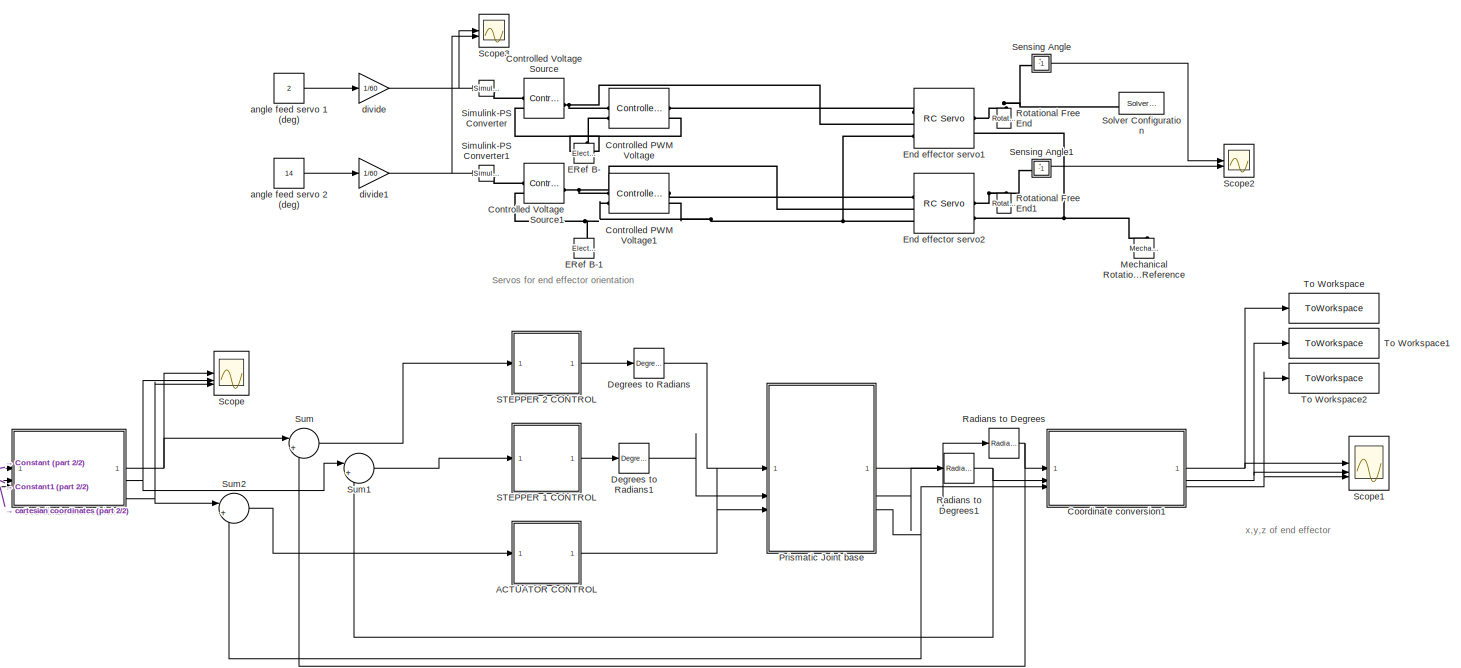
[diagram: root canvas - part 1/2, most of the canvas]
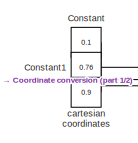
[diagram: root canvas - part 2/2, bottom left region]
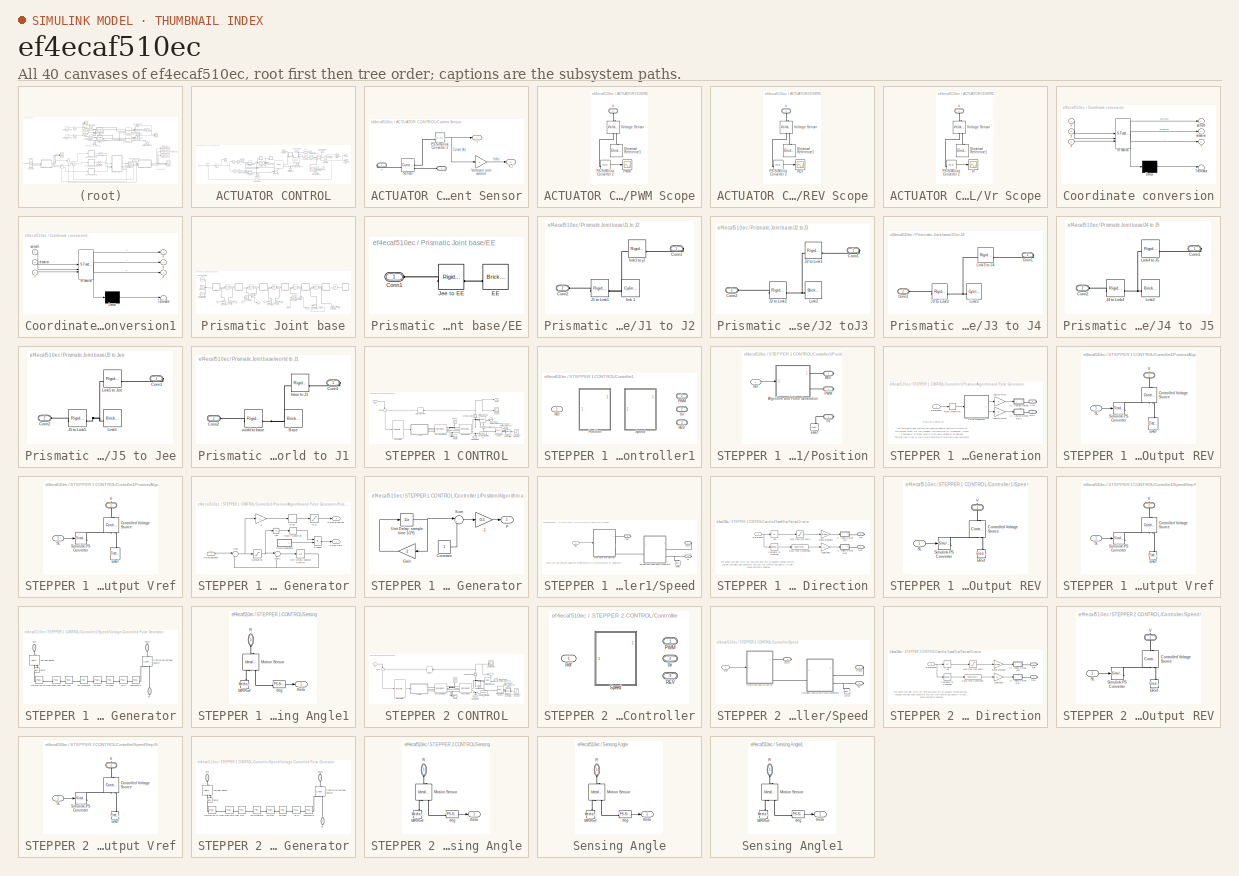
[diagram: thumbnail index - all 40 canvases of the model, root first then tree order]
MODEL slx_ef4ecaf510ec
KIND model
CONFIG AbsTol = auto
CONFIG EnableMultiTasking = off
CONFIG FixedStep = auto
CONFIG MaxStep = auto
CONFIG MinStep = auto
CONFIG RelTol = 1e-3
CONFIG SampleTimeConstraint = Unconstrained
CONFIG SolverName = VariableStepAuto
CONFIG StartTime = 0.0
CONFIG StopTime = 10
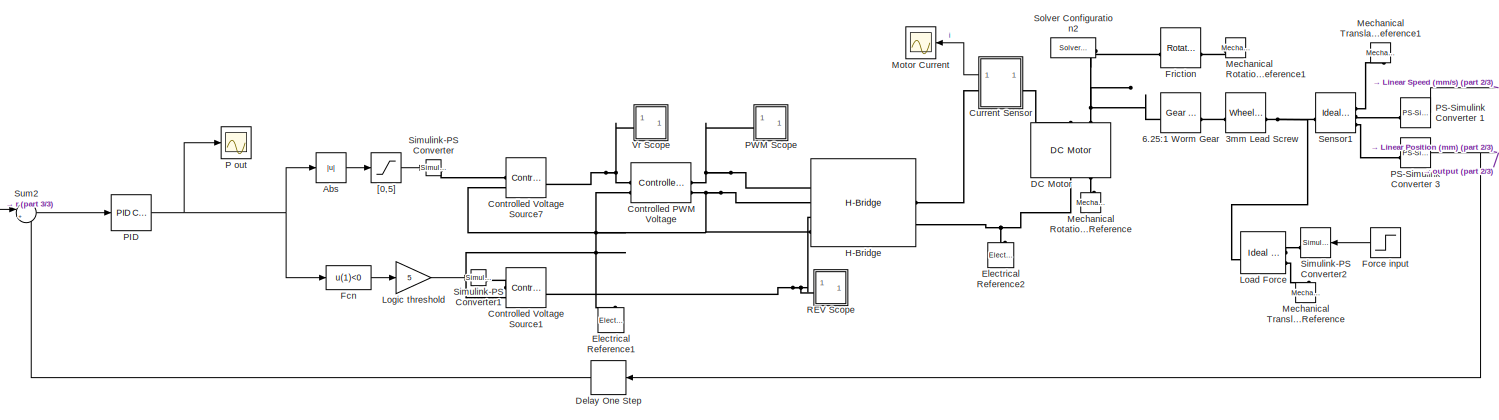
[diagram: ACTUATOR CONTROL - part 1/3, most of the canvas]
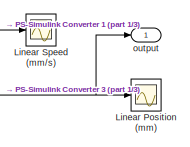
[diagram: ACTUATOR CONTROL - part 2/3, middle right region]
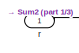
[diagram: ACTUATOR CONTROL - part 3/3, middle left region]
BLOCK [SubSystem] ACTUATOR CONTROL
BLOCK [Reference] ACTUATOR CONTROL/ PID  REF=slpidlib/PID Controller
  SourceBlock = slpidlib/PID Controller
  SourceType = PID 1dof
BLOCK [Reference] ACTUATOR CONTROL/3mm Lead Screw  REF=fl_lib/Mechanical/Mechanisms/Wheel and Axle
  SourceBlock = fl_lib/Mechanical/Mechanisms/Wheel and Axle
  SourceType = Wheel and Axle
BLOCK [Reference] ACTUATOR CONTROL/6.25:1 Worm Gear  REF=fl_lib/Mechanical/Mechanisms/Gear Box
  SourceBlock = fl_lib/Mechanical/Mechanisms/Gear Box
  SourceType = Gear Box
BLOCK [Abs] ACTUATOR CONTROL/Abs
  SaturateOnIntegerOverflow = off
BLOCK [Reference] ACTUATOR CONTROL/Controlled PWM Voltage  REF=ee_lib/Integrated Circuits/Controlled PWM
Voltage
  SourceBlock = ee_lib/Integrated Circuits/Controlled PWM\nVoltage
  SourceType = Controlled PWM\nVoltage
BLOCK [Reference] ACTUATOR CONTROL/Controlled Voltage Source1  REF=fl_lib/Electrical/Electrical Sources/Controlled Voltage
Source
  SourceBlock = fl_lib/Electrical/Electrical Sources/Controlled Voltage\nSource
  SourceType = Controlled Voltage\nSource
BLOCK [Reference] ACTUATOR CONTROL/Controlled Voltage Source7  REF=fl_lib/Electrical/Electrical Sources/Controlled Voltage
Source
  SourceBlock = fl_lib/Electrical/Electrical Sources/Controlled Voltage\nSource
  SourceType = Controlled Voltage\nSource
BLOCK [SubSystem] ACTUATOR CONTROL/Current Sensor
BLOCK [PMIOPort] ACTUATOR CONTROL/Current Sensor/+
  Side = Right
BLOCK [PMIOPort] ACTUATOR CONTROL/Current Sensor/-
  Port = 2
  Side = Left
BLOCK [Reference] ACTUATOR CONTROL/Current Sensor/PS-Simulink Converter 2  REF=nesl_utility/PS-Simulink
Converter
  SourceBlock = nesl_utility/PS-Simulink\nConverter
  SourceType = PS-Simulink\nConverter
BLOCK [Reference] ACTUATOR CONTROL/Current Sensor/Sensor  REF=fl_lib/Electrical/Electrical Sensors/Current Sensor
  SourceBlock = fl_lib/Electrical/Electrical Sensors/Current Sensor
  SourceType = Current Sensor
BLOCK [Outport] ACTUATOR CONTROL/Current Sensor/V_i
  Port = 2
  VectorParamsAs1DForOutWhenUnconnected = off
BLOCK [Gain] ACTUATOR CONTROL/Current Sensor/Volts per unit current
BLOCK [Outport] ACTUATOR CONTROL/Current Sensor/i
  VectorParamsAs1DForOutWhenUnconnected = off
BLOCK [Reference] ACTUATOR CONTROL/DC Motor  REF=ee_lib/Electromechanical/Brushed Motors/DC Motor
  NameLocation = left
  SourceBlock = ee_lib/Electromechanical/Brushed Motors/DC Motor
  SourceType = DC Motor
BLOCK [Delay] ACTUATOR CONTROL/Delay One Step
  DelayLength = 1
  InputPortMap = u0
  NameLocation = top
BLOCK [Reference] ACTUATOR CONTROL/Electrical Reference1  REF=fl_lib/Electrical/Electrical Elements/Electrical Reference
  NameLocation = right
  SourceBlock = fl_lib/Electrical/Electrical Elements/Electrical Reference
  SourceType = Electrical Reference
BLOCK [Reference] ACTUATOR CONTROL/Electrical Reference2  REF=fl_lib/Electrical/Electrical Elements/Electrical Reference
  NameLocation = right
  SourceBlock = fl_lib/Electrical/Electrical Elements/Electrical Reference
  SourceType = Electrical Reference
BLOCK [Fcn] ACTUATOR CONTROL/Fcn
  Expr = u(1)<0
BLOCK [Step] ACTUATOR CONTROL/Force input
  After = 26
  SampleTime = 0
  Time = 0
BLOCK [Reference] ACTUATOR CONTROL/Friction  REF=fl_lib/Mechanical/Rotational Elements/Rotational Friction
  SourceBlock = fl_lib/Mechanical/Rotational Elements/Rotational Friction
  SourceType = Rotational Friction
BLOCK [Reference] ACTUATOR CONTROL/H-Bridge  REF=ee_lib/Semiconductors &
Converters/Converters/H-Bridge
  SourceBlock = ee_lib/Semiconductors &\nConverters/Converters/H-Bridge
  SourceType = H-Bridge
BLOCK [Scope] ACTUATOR CONTROL/Linear Position (mm)
  Floating = off
  NumInputPorts = 1
  ScopeSpecificationString = Simulink.scopes.TimeScopeBlockCfg('CurrentConfiguration', extmgr.ConfigurationSet(extmgr.Configuration('Core','General UI',true,'FigureColor',[0.156862745098039 0.156862745098039 0.156862745098039],'MessageLogAutoOpenMode','for warn/fail messages','ShowCloseAll',true,'ShowBringAllForward',true),extmgr.Configuration('Core','Source UI',true,'PlaybackToolbar',true),extmgr.Configuration('Sources','Wir...<+2071ch>
BLOCK [Scope] ACTUATOR CONTROL/Linear Speed (mm//s)
  Floating = off
  NumInputPorts = 1
  ScopeSpecificationString = Simulink.scopes.TimeScopeBlockCfg('CurrentConfiguration', extmgr.ConfigurationSet(extmgr.Configuration('Core','General UI',true,'MessageLogAutoOpenMode','for warn/fail messages','ShowCloseAll',true,'ShowBringAllForward',true,'FigureColor',[0.156862745098039 0.156862745098039 0.156862745098039]),extmgr.Configuration('Core','Source UI',true,'PlaybackToolbar',true),extmgr.Configuration('Sources','Wir...<+1956ch>
BLOCK [Reference] ACTUATOR CONTROL/Load Force  REF=fl_lib/Mechanical/Mechanical Sources/Ideal Force Source
  SourceBlock = fl_lib/Mechanical/Mechanical Sources/Ideal Force Source
  SourceType = Ideal Force Source
BLOCK [Gain] ACTUATOR CONTROL/Logic threshold
  Gain = 5
BLOCK [Reference] ACTUATOR CONTROL/Mechanical Rotational Reference  REF=fl_lib/Mechanical/Rotational Elements/Mechanical
Rotational Reference
  NameLocation = left
  SourceBlock = fl_lib/Mechanical/Rotational Elements/Mechanical\nRotational Reference
  SourceType = Mechanical\nRotational Reference
BLOCK [Reference] ACTUATOR CONTROL/Mechanical Rotational Reference1  REF=fl_lib/Mechanical/Rotational Elements/Mechanical
Rotational Reference
  SourceBlock = fl_lib/Mechanical/Rotational Elements/Mechanical\nRotational Reference
  SourceType = Mechanical\nRotational Reference
BLOCK [Reference] ACTUATOR CONTROL/Mechanical Translational Reference  REF=fl_lib/Mechanical/Translational
Elements/Mechanical
Translational
Reference
  NameLocation = right
  SourceBlock = fl_lib/Mechanical/Translational\nElements/Mechanical\nTranslational\nReference
  SourceType = Mechanical\nTranslational\nReference
BLOCK [Reference] ACTUATOR CONTROL/Mechanical Translational Reference1  REF=fl_lib/Mechanical/Translational
Elements/Mechanical
Translational
Reference
  NameLocation = left
  SourceBlock = fl_lib/Mechanical/Translational\nElements/Mechanical\nTranslational\nReference
  SourceType = Mechanical\nTranslational\nReference
BLOCK [Scope] ACTUATOR CONTROL/Motor Current
  Floating = off
  NumInputPorts = 1
  ScopeSpecificationString = Simulink.scopes.TimeScopeBlockCfg('CurrentConfiguration', extmgr.ConfigurationSet(extmgr.Configuration('Core','General UI',true,'FigureColor',[0.156862745098039 0.156862745098039 0.156862745098039],'MessageLogAutoOpenMode','for warn/fail messages','ShowCloseAll',true,'ShowBringAllForward',true),extmgr.Configuration('Core','Source UI',true,'PlaybackToolbar',true),extmgr.Configuration('Sources','Wir...<+2069ch>
BLOCK [Scope] ACTUATOR CONTROL/P out
  Floating = off
  NumInputPorts = 1
  ScopeSpecificationString = Simulink.scopes.TimeScopeBlockCfg('CurrentConfiguration', extmgr.ConfigurationSet(extmgr.Configuration('Core','General UI',true,'FigureColor',[0.156862745098039 0.156862745098039 0.156862745098039],'MessageLogAutoOpenMode','for warn/fail messages','ShowCloseAll',true,'ShowBringAllForward',true),extmgr.Configuration('Core','Source UI',true,'PlaybackToolbar',true),extmgr.Configuration('Sources','Wir...<+2072ch>
BLOCK [Reference] ACTUATOR CONTROL/PS-Simulink Converter 1  REF=nesl_utility/PS-Simulink
Converter
  SourceBlock = nesl_utility/PS-Simulink\nConverter
  SourceType = PS-Simulink\nConverter
BLOCK [Reference] ACTUATOR CONTROL/PS-Simulink Converter 3  REF=nesl_utility/PS-Simulink
Converter
  SourceBlock = nesl_utility/PS-Simulink\nConverter
  SourceType = PS-Simulink\nConverter
BLOCK [SubSystem] ACTUATOR CONTROL/PWM Scope
BLOCK [Reference] ACTUATOR CONTROL/PWM Scope/Electrical Reference1  REF=fl_lib/Electrical/Electrical Elements/Electrical Reference
  NameLocation = right
  SourceBlock = fl_lib/Electrical/Electrical Elements/Electrical Reference
  SourceType = Electrical Reference
BLOCK [Reference] ACTUATOR CONTROL/PWM Scope/PS-Simulink Converter 2  REF=nesl_utility/PS-Simulink
Converter
  SourceBlock = nesl_utility/PS-Simulink\nConverter
  SourceType = PS-Simulink\nConverter
BLOCK [Scope] ACTUATOR CONTROL/PWM Scope/PWM
  Floating = off
  NumInputPorts = 1
  ScopeSpecificationString = Simulink.scopes.TimeScopeBlockCfg('CurrentConfiguration', extmgr.ConfigurationSet(extmgr.Configuration('Core','General UI',true,'ShowNewAction',false,'ShowLoadConfigSet',false,'ShowSaveConfigSet',false,'DisplayFullSourceName',false,'MessageLogAutoOpenMode','for warn/fail messages','MessageLogDialogPosition',[20 520 450 500],'ShowMainToolbar',true,'ShowPlaybackToolbar',false,'ShowStatusbar',true,'S...<+3033ch>
BLOCK [Reference] ACTUATOR CONTROL/PWM Scope/Voltage Sensor  REF=fl_lib/Electrical/Electrical Sensors/Voltage Sensor
  NameLocation = right
  SourceBlock = fl_lib/Electrical/Electrical Sensors/Voltage Sensor
  SourceType = Voltage Sensor
BLOCK [PMIOPort] ACTUATOR CONTROL/PWM Scope/u
  NameLocation = right
  Side = Left
BLOCK [SubSystem] ACTUATOR CONTROL/REV Scope
BLOCK [Reference] ACTUATOR CONTROL/REV Scope/Electrical Reference1  REF=fl_lib/Electrical/Electrical Elements/Electrical Reference
  NameLocation = right
  SourceBlock = fl_lib/Electrical/Electrical Elements/Electrical Reference
  SourceType = Electrical Reference
BLOCK [Reference] ACTUATOR CONTROL/REV Scope/PS-Simulink Converter 2  REF=nesl_utility/PS-Simulink
Converter
  SourceBlock = nesl_utility/PS-Simulink\nConverter
  SourceType = PS-Simulink\nConverter
BLOCK [Scope] ACTUATOR CONTROL/REV Scope/REV
  Floating = off
  NumInputPorts = 1
  ScopeSpecificationString = Simulink.scopes.TimeScopeBlockCfg('CurrentConfiguration', extmgr.ConfigurationSet(extmgr.Configuration('Core','General UI',true,'ShowNewAction',false,'ShowLoadConfigSet',false,'ShowSaveConfigSet',false,'DisplayFullSourceName',false,'MessageLogAutoOpenMode','for warn/fail messages','MessageLogDialogPosition',[20 520 450 500],'ShowMainToolbar',true,'ShowPlaybackToolbar',false,'ShowStatusbar',true,'S...<+3033ch>
BLOCK [Reference] ACTUATOR CONTROL/REV Scope/Voltage Sensor  REF=fl_lib/Electrical/Electrical Sensors/Voltage Sensor
  NameLocation = right
  SourceBlock = fl_lib/Electrical/Electrical Sensors/Voltage Sensor
  SourceType = Voltage Sensor
BLOCK [PMIOPort] ACTUATOR CONTROL/REV Scope/u
  NameLocation = right
  Side = Left
BLOCK [Reference] ACTUATOR CONTROL/Sensor1  REF=fl_lib/Mechanical/Mechanical Sensors/Ideal Translational
Motion Sensor
  SourceBlock = fl_lib/Mechanical/Mechanical Sensors/Ideal Translational\nMotion Sensor
  SourceType = Ideal Translational\nMotion Sensor
BLOCK [Reference] ACTUATOR CONTROL/Simulink-PS Converter  REF=nesl_utility/Simulink-PS
Converter
  SourceBlock = nesl_utility/Simulink-PS\nConverter
  SourceType = Simulink-PS\nConverter
BLOCK [Reference] ACTUATOR CONTROL/Simulink-PS Converter1  REF=nesl_utility/Simulink-PS
Converter
  SourceBlock = nesl_utility/Simulink-PS\nConverter
  SourceType = Simulink-PS\nConverter
BLOCK [Reference] ACTUATOR CONTROL/Simulink-PS Converter2  REF=nesl_utility/Simulink-PS
Converter
  SourceBlock = nesl_utility/Simulink-PS\nConverter
  SourceType = Simulink-PS\nConverter
BLOCK [Reference] ACTUATOR CONTROL/Solver Configuration2  REF=nesl_utility/Solver
Configuration
  SourceBlock = nesl_utility/Solver\nConfiguration
  SourceType = Solver\nConfiguration
BLOCK [Sum] ACTUATOR CONTROL/Sum2
  Inputs = |+-
BLOCK [SubSystem] ACTUATOR CONTROL/Vr Scope
BLOCK [Reference] ACTUATOR CONTROL/Vr Scope/Electrical Reference1  REF=fl_lib/Electrical/Electrical Elements/Electrical Reference
  NameLocation = right
  SourceBlock = fl_lib/Electrical/Electrical Elements/Electrical Reference
  SourceType = Electrical Reference
BLOCK [Reference] ACTUATOR CONTROL/Vr Scope/PS-Simulink Converter 2  REF=nesl_utility/PS-Simulink
Converter
  SourceBlock = nesl_utility/PS-Simulink\nConverter
  SourceType = PS-Simulink\nConverter
BLOCK [Reference] ACTUATOR CONTROL/Vr Scope/Voltage Sensor  REF=fl_lib/Electrical/Electrical Sensors/Voltage Sensor
  NameLocation = right
  SourceBlock = fl_lib/Electrical/Electrical Sensors/Voltage Sensor
  SourceType = Voltage Sensor
BLOCK [Scope] ACTUATOR CONTROL/Vr Scope/Vr
  Floating = off
  NumInputPorts = 1
  ScopeSpecificationString = Simulink.scopes.TimeScopeBlockCfg('CurrentConfiguration', extmgr.ConfigurationSet(extmgr.Configuration('Core','General UI',true,'ShowNewAction',false,'ShowLoadConfigSet',false,'ShowSaveConfigSet',false,'DisplayFullSourceName',false,'MessageLogAutoOpenMode','for warn/fail messages','MessageLogDialogPosition',[20 520 450 500],'ShowMainToolbar',true,'ShowPlaybackToolbar',false,'ShowStatusbar',true,'S...<+3032ch>
BLOCK [PMIOPort] ACTUATOR CONTROL/Vr Scope/u
  NameLocation = right
  Side = Left
BLOCK [Saturate] ACTUATOR CONTROL/[0,5]
  LowerLimit = 0
  UpperLimit = 5
BLOCK [Outport] ACTUATOR CONTROL/output
BLOCK [Inport] ACTUATOR CONTROL/r
BLOCK [Constant] Constant
  Value = 0.1
BLOCK [Constant] Constant1
  Value = 0.76
BLOCK [Reference] Controlled PWM Voltage  REF=ee_lib/Integrated Circuits/Controlled PWM
Voltage
  SourceBlock = ee_lib/Integrated Circuits/Controlled PWM\nVoltage
  SourceType = Controlled PWM\nVoltage
BLOCK [Reference] Controlled PWM Voltage1  REF=ee_lib/Integrated Circuits/Controlled PWM
Voltage
  SourceBlock = ee_lib/Integrated Circuits/Controlled PWM\nVoltage
  SourceType = Controlled PWM\nVoltage
BLOCK [Reference] Controlled Voltage Source  REF=fl_lib/Electrical/Electrical Sources/Controlled Voltage
Source
  SourceBlock = fl_lib/Electrical/Electrical Sources/Controlled Voltage\nSource
  SourceType = Controlled Voltage\nSource
BLOCK [Reference] Controlled Voltage Source1  REF=fl_lib/Electrical/Electrical Sources/Controlled Voltage
Source
  SourceBlock = fl_lib/Electrical/Electrical Sources/Controlled Voltage\nSource
  SourceType = Controlled Voltage\nSource
BLOCK [SubSystem] Coordinate conversion
  ErrorFcn = Stateflow.Translate.translate
  PermitHierarchicalResolution = ExplicitOnly
  SFBlockType = MATLAB Function
  TreatAsAtomicUnit = on
BLOCK [Demux] Coordinate conversion/ Demux 
  Outputs = 1
BLOCK [S-Function] Coordinate conversion/ SFunction 
  EnableBusSupport = on
  FunctionName = sf_sfun
  PortCounts = [3 4]
  SFcnIsStateOwnerBlock = off
  SFunctionDeploymentMode = off
  Tag = Stateflow S-Function 2
BLOCK [Terminator] Coordinate conversion/ Terminator 
BLOCK [Outport] Coordinate conversion/azimuth
BLOCK [Outport] Coordinate conversion/elevation
  Port = 2
BLOCK [Outport] Coordinate conversion/r
  Port = 3
BLOCK [Inport] Coordinate conversion/x
BLOCK [Inport] Coordinate conversion/y
  Port = 2
BLOCK [Inport] Coordinate conversion/z
  Port = 3
BLOCK [SubSystem] Coordinate conversion1
  ErrorFcn = Stateflow.Translate.translate
  PermitHierarchicalResolution = ExplicitOnly
  SFBlockType = MATLAB Function
  TreatAsAtomicUnit = on
BLOCK [Demux] Coordinate conversion1/ Demux 
  Outputs = 1
BLOCK [S-Function] Coordinate conversion1/ SFunction 
  EnableBusSupport = on
  FunctionName = sf_sfun
  PortCounts = [3 4]
  SFcnIsStateOwnerBlock = off
  SFunctionDeploymentMode = off
  Tag = Stateflow S-Function 1
BLOCK [Terminator] Coordinate conversion1/ Terminator 
BLOCK [Inport] Coordinate conversion1/azimuth
BLOCK [Inport] Coordinate conversion1/elevation
  Port = 2
BLOCK [Inport] Coordinate conversion1/r
  Port = 3
BLOCK [Outport] Coordinate conversion1/x
BLOCK [Outport] Coordinate conversion1/y
  Port = 2
BLOCK [Outport] Coordinate conversion1/z
  Port = 3
BLOCK [Reference] Degrees to Radians  REF=simulink_extras/Transformations/Degrees to
Radians
  SourceBlock = simulink_extras/Transformations/Degrees to\nRadians
  SourceType = DegreesToRadians
BLOCK [Reference] Degrees to Radians1  REF=simulink_extras/Transformations/Degrees to
Radians
  SourceBlock = simulink_extras/Transformations/Degrees to\nRadians
  SourceType = DegreesToRadians
BLOCK [Reference] ERef B-  REF=fl_lib/Electrical/Electrical Elements/Electrical Reference
  NameLocation = left
  SourceBlock = fl_lib/Electrical/Electrical Elements/Electrical Reference
  SourceType = Electrical Reference
BLOCK [Reference] ERef B-1  REF=fl_lib/Electrical/Electrical Elements/Electrical Reference
  NameLocation = left
  SourceBlock = fl_lib/Electrical/Electrical Elements/Electrical Reference
  SourceType = Electrical Reference
BLOCK [Reference] End effector servo1  REF=ee_lib/Electromechanical/Brushed Motors/RC Servo
  SourceBlock = ee_lib/Electromechanical/Brushed Motors/RC Servo
  SourceType = RC Servo
BLOCK [Reference] End effector servo2  REF=ee_lib/Electromechanical/Brushed Motors/RC Servo
  SourceBlock = ee_lib/Electromechanical/Brushed Motors/RC Servo
  SourceType = RC Servo
BLOCK [Reference] Mechanical Rotational Reference  REF=fl_lib/Mechanical/Rotational Elements/Mechanical
Rotational Reference
  NameLocation = right
  SourceBlock = fl_lib/Mechanical/Rotational Elements/Mechanical\nRotational Reference
  SourceType = Mechanical\nRotational Reference
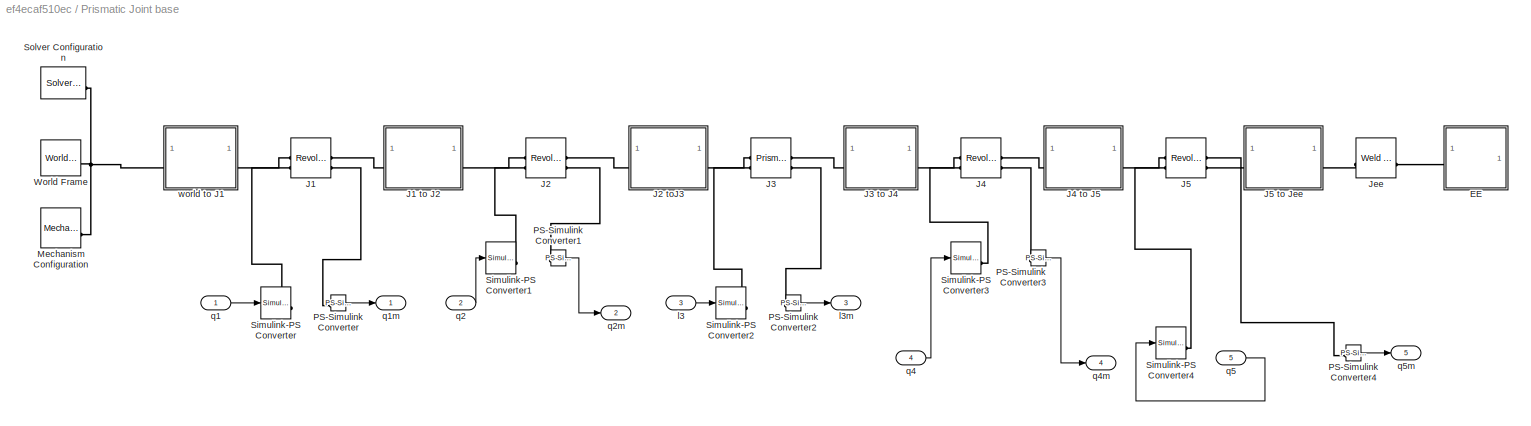
BLOCK [SubSystem] Prismatic Joint base
BLOCK [SubSystem] Prismatic Joint base/EE
BLOCK [PMIOPort] Prismatic Joint base/EE/Conn1
  Side = Left
BLOCK [Reference] Prismatic Joint base/EE/EE  REF=sm_lib/Body Elements/Brick Solid
  NameLocation = top
  SourceBlock = sm_lib/Body Elements/Brick Solid
  SourceType = Brick Solid
BLOCK [Reference] Prismatic Joint base/EE/Jee to EE  REF=sm_lib/Frames and
Transforms/Rigid
Transform
  SourceBlock = sm_lib/Frames and\nTransforms/Rigid\nTransform
  SourceType = Rigid\nTransform
BLOCK [Reference] Prismatic Joint base/J1  REF=sm_lib/Joints/Revolute Joint
  SourceBlock = sm_lib/Joints/Revolute Joint
  SourceType = Revolute Joint
BLOCK [SubSystem] Prismatic Joint base/J1 to J2
BLOCK [PMIOPort] Prismatic Joint base/J1 to J2/Conn1
  Side = Right
BLOCK [PMIOPort] Prismatic Joint base/J1 to J2/Conn2
  Port = 2
  Side = Left
BLOCK [Reference] Prismatic Joint base/J1 to J2/J1 to Link1  REF=sm_lib/Frames and
Transforms/Rigid
Transform
  SourceBlock = sm_lib/Frames and\nTransforms/Rigid\nTransform
  SourceType = Rigid\nTransform
BLOCK [Reference] Prismatic Joint base/J1 to J2/link 1  REF=sm_lib/Body Elements/Cylindrical Solid
  NameLocation = top
  SourceBlock = sm_lib/Body Elements/Cylindrical Solid
  SourceType = Cylindrical Solid
BLOCK [Reference] Prismatic Joint base/J1 to J2/link1 to j2  REF=sm_lib/Frames and
Transforms/Rigid
Transform
  SourceBlock = sm_lib/Frames and\nTransforms/Rigid\nTransform
  SourceType = Rigid\nTransform
BLOCK [Reference] Prismatic Joint base/J2  REF=sm_lib/Joints/Revolute Joint
  SourceBlock = sm_lib/Joints/Revolute Joint
  SourceType = Revolute Joint
BLOCK [SubSystem] Prismatic Joint base/J2 toJ3
BLOCK [PMIOPort] Prismatic Joint base/J2 toJ3/Conn1
  Side = Right
BLOCK [PMIOPort] Prismatic Joint base/J2 toJ3/Conn2
  Port = 2
  Side = Left
BLOCK [Reference] Prismatic Joint base/J2 toJ3/J2 to Link1  REF=sm_lib/Frames and
Transforms/Rigid
Transform
  SourceBlock = sm_lib/Frames and\nTransforms/Rigid\nTransform
  SourceType = Rigid\nTransform
BLOCK [Reference] Prismatic Joint base/J2 toJ3/J2 to Link2  REF=sm_lib/Frames and
Transforms/Rigid
Transform
  SourceBlock = sm_lib/Frames and\nTransforms/Rigid\nTransform
  SourceType = Rigid\nTransform
BLOCK [Reference] Prismatic Joint base/J2 toJ3/Link2  REF=sm_lib/Body Elements/Brick Solid
  NameLocation = top
  SourceBlock = sm_lib/Body Elements/Brick Solid
  SourceType = Brick Solid
BLOCK [Reference] Prismatic Joint base/J3  REF=sm_lib/Joints/Prismatic
Joint
  SourceBlock = sm_lib/Joints/Prismatic\nJoint
  SourceType = Prismatic\nJoint
BLOCK [SubSystem] Prismatic Joint base/J3 to J4
BLOCK [PMIOPort] Prismatic Joint base/J3 to J4/Conn1
  Side = Right
BLOCK [PMIOPort] Prismatic Joint base/J3 to J4/Conn2
  Port = 2
  Side = Left
BLOCK [Reference] Prismatic Joint base/J3 to J4/J3 to Link3  REF=sm_lib/Frames and
Transforms/Rigid
Transform
  SourceBlock = sm_lib/Frames and\nTransforms/Rigid\nTransform
  SourceType = Rigid\nTransform
BLOCK [Reference] Prismatic Joint base/J3 to J4/Link3  REF=sm_lib/Body Elements/Cylindrical Solid
  NameLocation = top
  SourceBlock = sm_lib/Body Elements/Cylindrical Solid
  SourceType = Cylindrical Solid
BLOCK [Reference] Prismatic Joint base/J3 to J4/Link3 to J4  REF=sm_lib/Frames and
Transforms/Rigid
Transform
  SourceBlock = sm_lib/Frames and\nTransforms/Rigid\nTransform
  SourceType = Rigid\nTransform
BLOCK [Reference] Prismatic Joint base/J4  REF=sm_lib/Joints/Revolute Joint
  SourceBlock = sm_lib/Joints/Revolute Joint
  SourceType = Revolute Joint
BLOCK [SubSystem] Prismatic Joint base/J4 to J5
BLOCK [PMIOPort] Prismatic Joint base/J4 to J5/Conn1
  Side = Right
BLOCK [PMIOPort] Prismatic Joint base/J4 to J5/Conn2
  Port = 2
  Side = Left
BLOCK [Reference] Prismatic Joint base/J4 to J5/J4 to Link4  REF=sm_lib/Frames and
Transforms/Rigid
Transform
  SourceBlock = sm_lib/Frames and\nTransforms/Rigid\nTransform
  SourceType = Rigid\nTransform
BLOCK [Reference] Prismatic Joint base/J4 to J5/Link4  REF=sm_lib/Body Elements/Brick Solid
  NameLocation = top
  SourceBlock = sm_lib/Body Elements/Brick Solid
  SourceType = Brick Solid
BLOCK [Reference] Prismatic Joint base/J4 to J5/Link4 to J5  REF=sm_lib/Frames and
Transforms/Rigid
Transform
  SourceBlock = sm_lib/Frames and\nTransforms/Rigid\nTransform
  SourceType = Rigid\nTransform
BLOCK [Reference] Prismatic Joint base/J5  REF=sm_lib/Joints/Revolute Joint
  SourceBlock = sm_lib/Joints/Revolute Joint
  SourceType = Revolute Joint
BLOCK [SubSystem] Prismatic Joint base/J5 to Jee
BLOCK [PMIOPort] Prismatic Joint base/J5 to Jee/Conn1
  Side = Right
BLOCK [PMIOPort] Prismatic Joint base/J5 to Jee/Conn2
  Port = 2
  Side = Left
BLOCK [Reference] Prismatic Joint base/J5 to Jee/J5 to Link5  REF=sm_lib/Frames and
Transforms/Rigid
Transform
  SourceBlock = sm_lib/Frames and\nTransforms/Rigid\nTransform
  SourceType = Rigid\nTransform
BLOCK [Reference] Prismatic Joint base/J5 to Jee/Link5  REF=sm_lib/Body Elements/Brick Solid
  NameLocation = top
  SourceBlock = sm_lib/Body Elements/Brick Solid
  SourceType = Brick Solid
BLOCK [Reference] Prismatic Joint base/J5 to Jee/Link5 to Jee  REF=sm_lib/Frames and
Transforms/Rigid
Transform
  SourceBlock = sm_lib/Frames and\nTransforms/Rigid\nTransform
  SourceType = Rigid\nTransform
BLOCK [Reference] Prismatic Joint base/Jee  REF=sm_lib/Joints/Weld Joint
  SourceBlock = sm_lib/Joints/Weld Joint
  SourceType = Weld Joint
BLOCK [Reference] Prismatic Joint base/Mechanism Configuration  REF=sm_lib/Utilities/Mechanism
Configuration
  SourceBlock = sm_lib/Utilities/Mechanism\nConfiguration
  SourceType = Mechanism\nConfiguration
BLOCK [Reference] Prismatic Joint base/PS-Simulink Converter  REF=nesl_utility/PS-Simulink
Converter
  SourceBlock = nesl_utility/PS-Simulink\nConverter
  SourceType = PS-Simulink\nConverter
BLOCK [Reference] Prismatic Joint base/PS-Simulink Converter1  REF=nesl_utility/PS-Simulink
Converter
  SourceBlock = nesl_utility/PS-Simulink\nConverter
  SourceType = PS-Simulink\nConverter
BLOCK [Reference] Prismatic Joint base/PS-Simulink Converter2  REF=nesl_utility/PS-Simulink
Converter
  SourceBlock = nesl_utility/PS-Simulink\nConverter
  SourceType = PS-Simulink\nConverter
BLOCK [Reference] Prismatic Joint base/PS-Simulink Converter3  REF=nesl_utility/PS-Simulink
Converter
  SourceBlock = nesl_utility/PS-Simulink\nConverter
  SourceType = PS-Simulink\nConverter
BLOCK [Reference] Prismatic Joint base/PS-Simulink Converter4  REF=nesl_utility/PS-Simulink
Converter
  SourceBlock = nesl_utility/PS-Simulink\nConverter
  SourceType = PS-Simulink\nConverter
BLOCK [Reference] Prismatic Joint base/Simulink-PS Converter  REF=nesl_utility/Simulink-PS
Converter
  SourceBlock = nesl_utility/Simulink-PS\nConverter
  SourceType = Simulink-PS\nConverter
BLOCK [Reference] Prismatic Joint base/Simulink-PS Converter1  REF=nesl_utility/Simulink-PS
Converter
  SourceBlock = nesl_utility/Simulink-PS\nConverter
  SourceType = Simulink-PS\nConverter
BLOCK [Reference] Prismatic Joint base/Simulink-PS Converter2  REF=nesl_utility/Simulink-PS
Converter
  SourceBlock = nesl_utility/Simulink-PS\nConverter
  SourceType = Simulink-PS\nConverter
BLOCK [Reference] Prismatic Joint base/Simulink-PS Converter3  REF=nesl_utility/Simulink-PS
Converter
  SourceBlock = nesl_utility/Simulink-PS\nConverter
  SourceType = Simulink-PS\nConverter
BLOCK [Reference] Prismatic Joint base/Simulink-PS Converter4  REF=nesl_utility/Simulink-PS
Converter
  SourceBlock = nesl_utility/Simulink-PS\nConverter
  SourceType = Simulink-PS\nConverter
BLOCK [Reference] Prismatic Joint base/Solver Configuration  REF=nesl_utility/Solver
Configuration
  SourceBlock = nesl_utility/Solver\nConfiguration
  SourceType = Solver\nConfiguration
BLOCK [Reference] Prismatic Joint base/World Frame  REF=sm_lib/Frames and
Transforms/World Frame
  SourceBlock = sm_lib/Frames and\nTransforms/World Frame
  SourceType = World Frame
BLOCK [Inport] Prismatic Joint base/l3
  Port = 3
  Unit = m
BLOCK [Outport] Prismatic Joint base/l3m
  Port = 3
BLOCK [Inport] Prismatic Joint base/q1
  Unit = rad
BLOCK [Outport] Prismatic Joint base/q1m
BLOCK [Inport] Prismatic Joint base/q2
  Port = 2
  Unit = rad
BLOCK [Outport] Prismatic Joint base/q2m
  Port = 2
BLOCK [Inport] Prismatic Joint base/q4
  Port = 4
  Unit = rad
BLOCK [Outport] Prismatic Joint base/q4m
  Port = 4
BLOCK [Inport] Prismatic Joint base/q5
  Port = 5
  Unit = rad
BLOCK [Outport] Prismatic Joint base/q5m
  Port = 5
BLOCK [SubSystem] Prismatic Joint base/world to J1
BLOCK [Reference] Prismatic Joint base/world to J1/Base  REF=sm_lib/Body Elements/Brick Solid
  NameLocation = top
  SourceBlock = sm_lib/Body Elements/Brick Solid
  SourceType = Brick Solid
BLOCK [PMIOPort] Prismatic Joint base/world to J1/Conn1
  Side = Right
BLOCK [PMIOPort] Prismatic Joint base/world to J1/Conn2
  Port = 2
  Side = Left
BLOCK [Reference] Prismatic Joint base/world to J1/base to J1  REF=sm_lib/Frames and
Transforms/Rigid
Transform
  SourceBlock = sm_lib/Frames and\nTransforms/Rigid\nTransform
  SourceType = Rigid\nTransform
BLOCK [Reference] Prismatic Joint base/world to J1/world to base  REF=sm_lib/Frames and
Transforms/Rigid
Transform
  SourceBlock = sm_lib/Frames and\nTransforms/Rigid\nTransform
  SourceType = Rigid\nTransform
BLOCK [Reference] Radians to Degrees  REF=simulink_extras/Transformations/Radians
to Degrees
  SourceBlock = simulink_extras/Transformations/Radians\nto Degrees
  SourceType = RadiansToDegrees
BLOCK [Reference] Radians to Degrees1  REF=simulink_extras/Transformations/Radians
to Degrees
  SourceBlock = simulink_extras/Transformations/Radians\nto Degrees
  SourceType = RadiansToDegrees
BLOCK [Reference] Rotational Free End  REF=fl_lib/Mechanical/Rotational Elements/Rotational Free End
  NameLocation = right
  SourceBlock = fl_lib/Mechanical/Rotational Elements/Rotational Free End
  SourceType = Rotational Free End
BLOCK [Reference] Rotational Free End1  REF=fl_lib/Mechanical/Rotational Elements/Rotational Free End
  NameLocation = right
  SourceBlock = fl_lib/Mechanical/Rotational Elements/Rotational Free End
  SourceType = Rotational Free End
BLOCK [SubSystem] STEPPER 1 CONTROL
BLOCK [SubSystem] STEPPER 1 CONTROL/Controller1
  AttributesFormatString = %<BlockChoice>
  LabelModeActiveChoice = Speed
  Variant = on
  VariantControlMode = label
BLOCK [PMIOPort] STEPPER 1 CONTROL/Controller1/0v
  Port = 2
  Side = Right
BLOCK [PMIOPort] STEPPER 1 CONTROL/Controller1/PWM
  Side = Right
BLOCK [SubSystem] STEPPER 1 CONTROL/Controller1/Position
  VariantControl = Position
BLOCK [PMIOPort] STEPPER 1 CONTROL/Controller1/Position/0v
  Port = 2
  Side = Right
BLOCK [SubSystem] STEPPER 1 CONTROL/Controller1/Position/Algorithm and Pulse Generation
BLOCK [SubSystem] STEPPER 1 CONTROL/Controller1/Position/Algorithm and Pulse Generation/IC Analog Output REV
BLOCK [Reference] STEPPER 1 CONTROL/Controller1/Position/Algorithm and Pulse Generation/IC Analog Output REV/Controlled Voltage Source  REF=fl_lib/Electrical/Electrical Sources/Controlled Voltage
Source
  NameLocation = right
  SourceBlock = fl_lib/Electrical/Electrical Sources/Controlled Voltage\nSource
  SourceType = Controlled Voltage\nSource
BLOCK [Reference] STEPPER 1 CONTROL/Controller1/Position/Algorithm and Pulse Generation/IC Analog Output REV/ERef  REF=fl_lib/Electrical/Electrical Elements/Electrical Reference
  NameLocation = right
  SourceBlock = fl_lib/Electrical/Electrical Elements/Electrical Reference
  SourceType = Electrical Reference
BLOCK [Inport] STEPPER 1 CONTROL/Controller1/Position/Algorithm and Pulse Generation/IC Analog Output REV/SL
BLOCK [Reference] STEPPER 1 CONTROL/Controller1/Position/Algorithm and Pulse Generation/IC Analog Output REV/Simulink-PS Converter  REF=nesl_utility/Simulink-PS
Converter
  SourceBlock = nesl_utility/Simulink-PS\nConverter
  SourceType = Simulink-PS\nConverter
BLOCK [PMIOPort] STEPPER 1 CONTROL/Controller1/Position/Algorithm and Pulse Generation/IC Analog Output REV/V
  NameLocation = right
  Side = Right
BLOCK [SubSystem] STEPPER 1 CONTROL/Controller1/Position/Algorithm and Pulse Generation/IC Analog Output Vref
  NameLocation = top
BLOCK [Reference] STEPPER 1 CONTROL/Controller1/Position/Algorithm and Pulse Generation/IC Analog Output Vref/Controlled Voltage Source  REF=fl_lib/Electrical/Electrical Sources/Controlled Voltage
Source
  NameLocation = right
  SourceBlock = fl_lib/Electrical/Electrical Sources/Controlled Voltage\nSource
  SourceType = Controlled Voltage\nSource
BLOCK [Reference] STEPPER 1 CONTROL/Controller1/Position/Algorithm and Pulse Generation/IC Analog Output Vref/ERef  REF=fl_lib/Electrical/Electrical Elements/Electrical Reference
  NameLocation = right
  SourceBlock = fl_lib/Electrical/Electrical Elements/Electrical Reference
  SourceType = Electrical Reference
BLOCK [Inport] STEPPER 1 CONTROL/Controller1/Position/Algorithm and Pulse Generation/IC Analog Output Vref/SL
BLOCK [Reference] STEPPER 1 CONTROL/Controller1/Position/Algorithm and Pulse Generation/IC Analog Output Vref/Simulink-PS Converter  REF=nesl_utility/Simulink-PS
Converter
  SourceBlock = nesl_utility/Simulink-PS\nConverter
  SourceType = Simulink-PS\nConverter
BLOCK [PMIOPort] STEPPER 1 CONTROL/Controller1/Position/Algorithm and Pulse Generation/IC Analog Output Vref/V
  NameLocation = right
  Side = Right
BLOCK [Gain] STEPPER 1 CONTROL/Controller1/Position/Algorithm and Pulse Generation/Logic2Volts1
  Gain = 5
  NameLocation = top
BLOCK [Gain] STEPPER 1 CONTROL/Controller1/Position/Algorithm and Pulse Generation/Logic2Volts2
  Gain = 5
BLOCK [SubSystem] STEPPER 1 CONTROL/Controller1/Position/Algorithm and Pulse Generation/Pulse Generator
BLOCK [Gain] STEPPER 1 CONTROL/Controller1/Position/Algorithm and Pulse Generation/Pulse Generator/-1
  Gain = -1
BLOCK [Abs] STEPPER 1 CONTROL/Controller1/Position/Algorithm and Pulse Generation/Pulse Generator/Abs
  SaturateOnIntegerOverflow = off
BLOCK [Product] STEPPER 1 CONTROL/Controller1/Position/Algorithm and Pulse Generation/Pulse Generator/Product
  InputSameDT = on
  OutDataTypeStr = Inherit: Same as first input
  SaturateOnIntegerOverflow = on
BLOCK [Inport] STEPPER 1 CONTROL/Controller1/Position/Algorithm and Pulse Generation/Pulse Generator/Pulse  demand
  SampleTime = 1/f
BLOCK [SubSystem] STEPPER 1 CONTROL/Controller1/Position/Algorithm and Pulse Generation/Pulse Generator/Pulse Generator
BLOCK [Gain] STEPPER 1 CONTROL/Controller1/Position/Algorithm and Pulse Generation/Pulse Generator/Pulse Generator/-1
  Gain = 0.5
BLOCK [Constant] STEPPER 1 CONTROL/Controller1/Position/Algorithm and Pulse Generation/Pulse Generator/Pulse Generator/Constant
  SampleTime = 1/(2*f)
BLOCK [Gain] STEPPER 1 CONTROL/Controller1/Position/Algorithm and Pulse Generation/Pulse Generator/Pulse Generator/Gain
  Gain = -1
BLOCK [Sum] STEPPER 1 CONTROL/Controller1/Position/Algorithm and Pulse Generation/Pulse Generator/Pulse Generator/Sum
  Inputs = |++
BLOCK [UnitDelay] STEPPER 1 CONTROL/Controller1/Position/Algorithm and Pulse Generation/Pulse Generator/Pulse Generator/Unit Delay, sample time 1//2*f)
  HasFrameUpgradeWarning = on
  InitialCondition = -1
  SampleTime = 1/(2*f)
BLOCK [Outport] STEPPER 1 CONTROL/Controller1/Position/Algorithm and Pulse Generation/Pulse Generator/Pulse Generator/p
  VectorParamsAs1DForOutWhenUnconnected = off
BLOCK [Outport] STEPPER 1 CONTROL/Controller1/Position/Algorithm and Pulse Generation/Pulse Generator/Pulse direction
  Port = 2
  VectorParamsAs1DForOutWhenUnconnected = off
BLOCK [Outport] STEPPER 1 CONTROL/Controller1/Position/Algorithm and Pulse Generation/Pulse Generator/Pulse train
  VectorParamsAs1DForOutWhenUnconnected = off
BLOCK [RateTransition] STEPPER 1 CONTROL/Controller1/Position/Algorithm and Pulse Generation/Pulse Generator/Rate Transition
  Deterministic = off
BLOCK [Saturate] STEPPER 1 CONTROL/Controller1/Position/Algorithm and Pulse Generation/Pulse Generator/Saturation
  LowerLimit = -1
  UpperLimit = 1
BLOCK [Signum] STEPPER 1 CONTROL/Controller1/Position/Algorithm and Pulse Generation/Pulse Generator/Sign
BLOCK [Sum] STEPPER 1 CONTROL/Controller1/Position/Algorithm and Pulse Generation/Pulse Generator/Sum
  Inputs = |+-
BLOCK [Sum] STEPPER 1 CONTROL/Controller1/Position/Algorithm and Pulse Generation/Pulse Generator/Sum1
  Inputs = |++
BLOCK [UnitDelay] STEPPER 1 CONTROL/Controller1/Position/Algorithm and Pulse Generation/Pulse Generator/Unit Delay, sample time 1//f
  HasFrameUpgradeWarning = on
  SampleTime = 1/f
BLOCK [Saturate] STEPPER 1 CONTROL/Controller1/Position/Algorithm and Pulse Generation/Pulse Generator/[0,1]
  LowerLimit = 0
  UpperLimit = 1
BLOCK [PMIOPort] STEPPER 1 CONTROL/Controller1/Position/Algorithm and Pulse Generation/REV
  Side = Right
BLOCK [RateTransition] STEPPER 1 CONTROL/Controller1/Position/Algorithm and Pulse Generation/Rate Transition
  Deterministic = off
  NameLocation = top
BLOCK [Inport] STEPPER 1 CONTROL/Controller1/Position/Algorithm and Pulse Generation/Reference
BLOCK [PMIOPort] STEPPER 1 CONTROL/Controller1/Position/Algorithm and Pulse Generation/Vref
  NameLocation = top
  Port = 2
  Side = Right
BLOCK [Reference] STEPPER 1 CONTROL/Controller1/Position/ERef  REF=fl_lib/Electrical/Electrical Elements/Electrical Reference
  NameLocation = left
  SourceBlock = fl_lib/Electrical/Electrical Elements/Electrical Reference
  SourceType = Electrical Reference
BLOCK [PMIOPort] STEPPER 1 CONTROL/Controller1/Position/PWM
  Side = Right
BLOCK [PMIOPort] STEPPER 1 CONTROL/Controller1/Position/REV
  NameLocation = top
  Port = 3
  Side = Right
BLOCK [Inport] STEPPER 1 CONTROL/Controller1/Position/Ref
BLOCK [PMIOPort] STEPPER 1 CONTROL/Controller1/REV
  Port = 3
  Side = Right
BLOCK [Inport] STEPPER 1 CONTROL/Controller1/Ref
BLOCK [SubSystem] STEPPER 1 CONTROL/Controller1/Speed
  VariantControl = Speed
BLOCK [PMIOPort] STEPPER 1 CONTROL/Controller1/Speed/0v
  Port = 2
  Side = Right
BLOCK [Reference] STEPPER 1 CONTROL/Controller1/Speed/ERef  REF=fl_lib/Electrical/Electrical Elements/Electrical Reference
  NameLocation = right
  SourceBlock = fl_lib/Electrical/Electrical Elements/Electrical Reference
  SourceType = Electrical Reference
BLOCK [PMIOPort] STEPPER 1 CONTROL/Controller1/Speed/PWM
  Side = Right
BLOCK [PMIOPort] STEPPER 1 CONTROL/Controller1/Speed/REV
  Port = 3
  Side = Right
BLOCK [Inport] STEPPER 1 CONTROL/Controller1/Speed/Ref
BLOCK [SubSystem] STEPPER 1 CONTROL/Controller1/Speed/Step Rate and Direction
BLOCK [Abs] STEPPER 1 CONTROL/Controller1/Speed/Step Rate and Direction/Abs
  SaturateOnIntegerOverflow = off
BLOCK [Reference] STEPPER 1 CONTROL/Controller1/Speed/Step Rate and Direction/Compare To Constant  REF=simulink/Logic and Bit
Operations/Compare
To Constant
  SourceBlock = simulink/Logic and Bit\nOperations/Compare\nTo Constant
  SourceType = Compare To Constant
BLOCK [DataTypeConversion] STEPPER 1 CONTROL/Controller1/Speed/Step Rate and Direction/Data Type Conversion
  RndMeth = Floor
  SaturateOnIntegerOverflow = off
BLOCK [SubSystem] STEPPER 1 CONTROL/Controller1/Speed/Step Rate and Direction/IC Analog Output REV
BLOCK [Reference] STEPPER 1 CONTROL/Controller1/Speed/Step Rate and Direction/IC Analog Output REV/Controlled Voltage Source  REF=fl_lib/Electrical/Electrical Sources/Controlled Voltage
Source
  NameLocation = right
  SourceBlock = fl_lib/Electrical/Electrical Sources/Controlled Voltage\nSource
  SourceType = Controlled Voltage\nSource
BLOCK [Reference] STEPPER 1 CONTROL/Controller1/Speed/Step Rate and Direction/IC Analog Output REV/ERef  REF=fl_lib/Electrical/Electrical Elements/Electrical Reference
  NameLocation = right
  SourceBlock = fl_lib/Electrical/Electrical Elements/Electrical Reference
  SourceType = Electrical Reference
BLOCK [Inport] STEPPER 1 CONTROL/Controller1/Speed/Step Rate and Direction/IC Analog Output REV/SL
BLOCK [Reference] STEPPER 1 CONTROL/Controller1/Speed/Step Rate and Direction/IC Analog Output REV/Simulink-PS Converter  REF=nesl_utility/Simulink-PS
Converter
  SourceBlock = nesl_utility/Simulink-PS\nConverter
  SourceType = Simulink-PS\nConverter
BLOCK [PMIOPort] STEPPER 1 CONTROL/Controller1/Speed/Step Rate and Direction/IC Analog Output REV/V
  NameLocation = right
  Side = Right
BLOCK [SubSystem] STEPPER 1 CONTROL/Controller1/Speed/Step Rate and Direction/IC Analog Output Vref
BLOCK [Reference] STEPPER 1 CONTROL/Controller1/Speed/Step Rate and Direction/IC Analog Output Vref/Controlled Voltage Source  REF=fl_lib/Electrical/Electrical Sources/Controlled Voltage
Source
  NameLocation = right
  SourceBlock = fl_lib/Electrical/Electrical Sources/Controlled Voltage\nSource
  SourceType = Controlled Voltage\nSource
BLOCK [Reference] STEPPER 1 CONTROL/Controller1/Speed/Step Rate and Direction/IC Analog Output Vref/ERef  REF=fl_lib/Electrical/Electrical Elements/Electrical Reference
  NameLocation = right
  SourceBlock = fl_lib/Electrical/Electrical Elements/Electrical Reference
  SourceType = Electrical Reference
BLOCK [Inport] STEPPER 1 CONTROL/Controller1/Speed/Step Rate and Direction/IC Analog Output Vref/SL
BLOCK [Reference] STEPPER 1 CONTROL/Controller1/Speed/Step Rate and Direction/IC Analog Output Vref/Simulink-PS Converter  REF=nesl_utility/Simulink-PS
Converter
  SourceBlock = nesl_utility/Simulink-PS\nConverter
  SourceType = Simulink-PS\nConverter
BLOCK [PMIOPort] STEPPER 1 CONTROL/Controller1/Speed/Step Rate and Direction/IC Analog Output Vref/V
  NameLocation = right
  Side = Right
BLOCK [Gain] STEPPER 1 CONTROL/Controller1/Speed/Step Rate and Direction/Logic2Volts
  Gain = 5
BLOCK [Saturate] STEPPER 1 CONTROL/Controller1/Speed/Step Rate and Direction/Max step rate 100//s
  LowerLimit = 0
  UpperLimit = 100
BLOCK [PMIOPort] STEPPER 1 CONTROL/Controller1/Speed/Step Rate and Direction/REV
  Side = Right
BLOCK [Inport] STEPPER 1 CONTROL/Controller1/Speed/Step Rate and Direction/Reference
  NameLocation = top
BLOCK [Gain] STEPPER 1 CONTROL/Controller1/Speed/Step Rate and Direction/StepRate2Volts
  Gain = 5/100
BLOCK [PMIOPort] STEPPER 1 CONTROL/Controller1/Speed/Step Rate and Direction/Vref
  Port = 2
  Side = Right
BLOCK [SubSystem] STEPPER 1 CONTROL/Controller1/Speed/Voltage-Controlled Pulse Generator
BLOCK [PMIOPort] STEPPER 1 CONTROL/Controller1/Speed/Voltage-Controlled Pulse Generator/0v
  NameLocation = left
  Port = 2
  Side = Right
BLOCK [Reference] STEPPER 1 CONTROL/Controller1/Speed/Voltage-Controlled Pulse Generator/2*pi  REF=fl_ps_legacy_lib/Legacy Physical
Signals/Functions/PS Gain
  SourceBlock = fl_ps_legacy_lib/Legacy Physical\nSignals/Functions/PS Gain
  SourceType = PS Gain
BLOCK [Reference] STEPPER 1 CONTROL/Controller1/Speed/Voltage-Controlled Pulse Generator/Controlled Voltage Source  REF=fl_lib/Electrical/Electrical Sources/Controlled Voltage
Source
  NameLocation = left
  SourceBlock = fl_lib/Electrical/Electrical Sources/Controlled Voltage\nSource
  SourceType = Controlled Voltage\nSource
BLOCK [Reference] STEPPER 1 CONTROL/Controller1/Speed/Voltage-Controlled Pulse Generator/ERef  REF=fl_lib/Electrical/Electrical Elements/Electrical Reference
  NameLocation = right
  SourceBlock = fl_lib/Electrical/Electrical Elements/Electrical Reference
  SourceType = Electrical Reference
BLOCK [Reference] STEPPER 1 CONTROL/Controller1/Speed/Voltage-Controlled Pulse Generator/Max step rate =100  REF=fl_ps_legacy_lib/Legacy Physical
Signals/Functions/PS Gain
  NameLocation = top
  SourceBlock = fl_ps_legacy_lib/Legacy Physical\nSignals/Functions/PS Gain
  SourceType = PS Gain
BLOCK [Reference] STEPPER 1 CONTROL/Controller1/Speed/Voltage-Controlled Pulse Generator/Normalize to 1  REF=fl_ps_legacy_lib/Legacy Physical
Signals/Functions/PS Gain
  SourceBlock = fl_ps_legacy_lib/Legacy Physical\nSignals/Functions/PS Gain
  SourceType = PS Gain
BLOCK [Reference] STEPPER 1 CONTROL/Controller1/Speed/Voltage-Controlled Pulse Generator/PS Integrator  REF=fl_ps_legacy_lib/Legacy Physical
Signals/Linear Operators/PS Integrator
  NameLocation = top
  SourceBlock = fl_ps_legacy_lib/Legacy Physical\nSignals/Linear Operators/PS Integrator
  SourceType = PS Integrator
BLOCK [Reference] STEPPER 1 CONTROL/Controller1/Speed/Voltage-Controlled Pulse Generator/PS Sign  REF=fl_ps_legacy_lib/Legacy Physical
Signals/Nonlinear Operators/PS Sign
  SourceBlock = fl_ps_legacy_lib/Legacy Physical\nSignals/Nonlinear Operators/PS Sign
  SourceType = PS Sign
BLOCK [Reference] STEPPER 1 CONTROL/Controller1/Speed/Voltage-Controlled Pulse Generator/PS Sine  REF=fl_ps_legacy_lib/Legacy Physical
Signals/Functions/PS Math Function
  SourceBlock = fl_ps_legacy_lib/Legacy Physical\nSignals/Functions/PS Math Function
  SourceType = PS Math Function
BLOCK [PMIOPort] STEPPER 1 CONTROL/Controller1/Speed/Voltage-Controlled Pulse Generator/PWM
  NameLocation = left
  Side = Right
BLOCK [Reference] STEPPER 1 CONTROL/Controller1/Speed/Voltage-Controlled Pulse Generator/Voltage Sensor  REF=fl_lib/Electrical/Electrical Sensors/Voltage Sensor
  NameLocation = right
  SourceBlock = fl_lib/Electrical/Electrical Sensors/Voltage Sensor
  SourceType = Voltage Sensor
BLOCK [PMIOPort] STEPPER 1 CONTROL/Controller1/Speed/Voltage-Controlled Pulse Generator/Vref
  NameLocation = right
  Port = 3
  Side = Left
BLOCK [Reference] STEPPER 1 CONTROL/Controller1/Speed/Voltage-Controlled Pulse Generator/[0,1]  REF=fl_ps_legacy_lib/Legacy Physical
Signals/Nonlinear Operators/PS Saturation
  SourceBlock = fl_ps_legacy_lib/Legacy Physical\nSignals/Nonlinear Operators/PS Saturation
  SourceType = PS Saturation
BLOCK [Reference] STEPPER 1 CONTROL/Controller1/Speed/Voltage-Controlled Pulse Generator/logic2volts  REF=fl_ps_legacy_lib/Legacy Physical
Signals/Functions/PS Gain
  SourceBlock = fl_ps_legacy_lib/Legacy Physical\nSignals/Functions/PS Gain
  SourceType = PS Gain
BLOCK [Delay] STEPPER 1 CONTROL/Delay One Step
  DelayLength = 1
  InputPortMap = u0
  NameLocation = top
BLOCK [Reference] STEPPER 1 CONTROL/ERef A+1  REF=fl_lib/Electrical/Electrical Elements/Electrical Reference
  NameLocation = top
  SourceBlock = fl_lib/Electrical/Electrical Elements/Electrical Reference
  SourceType = Electrical Reference
BLOCK [Reference] STEPPER 1 CONTROL/ERef B-1  REF=fl_lib/Electrical/Electrical Elements/Electrical Reference
  SourceBlock = fl_lib/Electrical/Electrical Elements/Electrical Reference
  SourceType = Electrical Reference
BLOCK [Reference] STEPPER 1 CONTROL/Friction Stepper 1  REF=fl_lib/Mechanical/Rotational Elements/Rotational Friction
  SourceBlock = fl_lib/Mechanical/Rotational Elements/Rotational Friction
  SourceType = Rotational Friction
BLOCK [Reference] STEPPER 1 CONTROL/Ideal Torque Source  REF=fl_lib/Mechanical/Mechanical Sources/Ideal Torque Source
  Commented = on
  NameLocation = top
  SourceBlock = fl_lib/Mechanical/Mechanical Sources/Ideal Torque Source
  SourceType = Ideal Torque Source
BLOCK [Inport] STEPPER 1 CONTROL/In1
BLOCK [Step] STEPPER 1 CONTROL/Load torque stepper 1
  After = 26
  Commented = on
  SampleTime = 0
  Time = 0
BLOCK [Reference] STEPPER 1 CONTROL/MRRef Motor1  REF=fl_lib/Mechanical/Rotational Elements/Mechanical
Rotational Reference
  NameLocation = left
  SourceBlock = fl_lib/Mechanical/Rotational Elements/Mechanical\nRotational Reference
  SourceType = Mechanical\nRotational Reference
BLOCK [Reference] STEPPER 1 CONTROL/Mechanical Rotational Reference2  REF=fl_lib/Mechanical/Rotational Elements/Mechanical
Rotational Reference
  Commented = on
  NameLocation = top
  SourceBlock = fl_lib/Mechanical/Rotational Elements/Mechanical\nRotational Reference
  SourceType = Mechanical\nRotational Reference
BLOCK [Reference] STEPPER 1 CONTROL/Mechanical Rotational Reference4  REF=fl_lib/Mechanical/Rotational Elements/Mechanical
Rotational Reference
  SourceBlock = fl_lib/Mechanical/Rotational Elements/Mechanical\nRotational Reference
  SourceType = Mechanical\nRotational Reference
BLOCK [Reference] STEPPER 1 CONTROL/PID Controller1  REF=slpidlib/PID Controller
  SourceBlock = slpidlib/PID Controller
  SourceType = PID 1dof
BLOCK [Scope] STEPPER 1 CONTROL/Scope
  Floating = off
  NumInputPorts = 1
  ScopeSpecificationString = Simulink.scopes.TimeScopeBlockCfg('CurrentConfiguration', extmgr.ConfigurationSet(extmgr.Configuration('Core','General UI',true),extmgr.Configuration('Core','Source UI',true),extmgr.Configuration('Sources','WiredSimulink',true,'DataLoggingVariableName','ScopeData1'),extmgr.Configuration('Visuals','Time Domain',true,'SerializedDisplays',{struct('MinYLimReal','-3.03708','MaxYLimReal','27.33372','YLa...<+1402ch>
BLOCK [SubSystem] STEPPER 1 CONTROL/Sensing Angle1
  NameLocation = left
BLOCK [Reference] STEPPER 1 CONTROL/Sensing Angle1/MRRef  REF=fl_lib/Mechanical/Rotational Elements/Mechanical
Rotational Reference
  NameLocation = left
  SourceBlock = fl_lib/Mechanical/Rotational Elements/Mechanical\nRotational Reference
  SourceType = Mechanical\nRotational Reference
BLOCK [Reference] STEPPER 1 CONTROL/Sensing Angle1/Motion Sensor  REF=fl_lib/Mechanical/Mechanical Sensors/Ideal Rotational
Motion Sensor
  NameLocation = left
  SourceBlock = fl_lib/Mechanical/Mechanical Sensors/Ideal Rotational\nMotion Sensor
  SourceType = Ideal Rotational\nMotion Sensor
BLOCK [PMIOPort] STEPPER 1 CONTROL/Sensing Angle1/R
  NameLocation = left
  Side = Left
BLOCK [Reference] STEPPER 1 CONTROL/Sensing Angle1/deg  REF=nesl_utility/PS-Simulink
Converter
  SourceBlock = nesl_utility/PS-Simulink\nConverter
  SourceType = PS-Simulink\nConverter
BLOCK [Outport] STEPPER 1 CONTROL/Sensing Angle1/theta
  VectorParamsAs1DForOutWhenUnconnected = off
BLOCK [Reference] STEPPER 1 CONTROL/Shaft Free End1  REF=fl_lib/Mechanical/Rotational Elements/Rotational Free End
  SourceBlock = fl_lib/Mechanical/Rotational Elements/Rotational Free End
  SourceType = Rotational Free End
BLOCK [Reference] STEPPER 1 CONTROL/Simulink-PS Converter1  REF=nesl_utility/Simulink-PS
Converter
  Commented = on
  SourceBlock = nesl_utility/Simulink-PS\nConverter
  SourceType = Simulink-PS\nConverter
BLOCK [Reference] STEPPER 1 CONTROL/Solver Configuration1  REF=nesl_utility/Solver
Configuration
  SourceBlock = nesl_utility/Solver\nConfiguration
  SourceType = Solver\nConfiguration
BLOCK [Reference] STEPPER 1 CONTROL/Stepper Motor Driver1  REF=ee_lib/Electromechanical/Reluctance & Stepper/Stepper Motor Driver
  SourceBlock = ee_lib/Electromechanical/Reluctance & Stepper/Stepper Motor Driver
  SourceType = Stepper Motor Driver
BLOCK [Reference] STEPPER 1 CONTROL/Stepper Motor1  REF=ee_lib/Electromechanical/Reluctance & Stepper/Stepper Motor
  SourceBlock = ee_lib/Electromechanical/Reluctance & Stepper/Stepper Motor
  SourceType = Stepper Motor
BLOCK [Sum] STEPPER 1 CONTROL/Sum1
  Inputs = |+-
  NameLocation = left
BLOCK [Outport] STEPPER 1 CONTROL/theta
BLOCK [SubSystem] STEPPER 2 CONTROL
BLOCK [SubSystem] STEPPER 2 CONTROL/Controller
  AttributesFormatString = %<BlockChoice>
  LabelModeActiveChoice = Speed
  Variant = on
  VariantControlMode = label
BLOCK [PMIOPort] STEPPER 2 CONTROL/Controller/0v
  Port = 2
  Side = Right
BLOCK [PMIOPort] STEPPER 2 CONTROL/Controller/PWM
  Side = Right
BLOCK [PMIOPort] STEPPER 2 CONTROL/Controller/REV
  Port = 3
  Side = Right
BLOCK [Inport] STEPPER 2 CONTROL/Controller/Ref
BLOCK [SubSystem] STEPPER 2 CONTROL/Controller/Speed
  VariantControl = Speed
BLOCK [PMIOPort] STEPPER 2 CONTROL/Controller/Speed/0v
  Port = 2
  Side = Right
BLOCK [Reference] STEPPER 2 CONTROL/Controller/Speed/ERef  REF=fl_lib/Electrical/Electrical Elements/Electrical Reference
  NameLocation = right
  SourceBlock = fl_lib/Electrical/Electrical Elements/Electrical Reference
  SourceType = Electrical Reference
BLOCK [PMIOPort] STEPPER 2 CONTROL/Controller/Speed/PWM
  Side = Right
BLOCK [PMIOPort] STEPPER 2 CONTROL/Controller/Speed/REV
  Port = 3
  Side = Right
BLOCK [Inport] STEPPER 2 CONTROL/Controller/Speed/Ref
BLOCK [SubSystem] STEPPER 2 CONTROL/Controller/Speed/Step Rate and Direction
BLOCK [Abs] STEPPER 2 CONTROL/Controller/Speed/Step Rate and Direction/Abs
  SaturateOnIntegerOverflow = off
BLOCK [Reference] STEPPER 2 CONTROL/Controller/Speed/Step Rate and Direction/Compare To Constant  REF=simulink/Logic and Bit
Operations/Compare
To Constant
  SourceBlock = simulink/Logic and Bit\nOperations/Compare\nTo Constant
  SourceType = Compare To Constant
BLOCK [DataTypeConversion] STEPPER 2 CONTROL/Controller/Speed/Step Rate and Direction/Data Type Conversion
  RndMeth = Floor
  SaturateOnIntegerOverflow = off
BLOCK [SubSystem] STEPPER 2 CONTROL/Controller/Speed/Step Rate and Direction/IC Analog Output REV
BLOCK [Reference] STEPPER 2 CONTROL/Controller/Speed/Step Rate and Direction/IC Analog Output REV/Controlled Voltage Source  REF=fl_lib/Electrical/Electrical Sources/Controlled Voltage
Source
  NameLocation = right
  SourceBlock = fl_lib/Electrical/Electrical Sources/Controlled Voltage\nSource
  SourceType = Controlled Voltage\nSource
BLOCK [Reference] STEPPER 2 CONTROL/Controller/Speed/Step Rate and Direction/IC Analog Output REV/ERef  REF=fl_lib/Electrical/Electrical Elements/Electrical Reference
  NameLocation = right
  SourceBlock = fl_lib/Electrical/Electrical Elements/Electrical Reference
  SourceType = Electrical Reference
BLOCK [Inport] STEPPER 2 CONTROL/Controller/Speed/Step Rate and Direction/IC Analog Output REV/SL
BLOCK [Reference] STEPPER 2 CONTROL/Controller/Speed/Step Rate and Direction/IC Analog Output REV/Simulink-PS Converter  REF=nesl_utility/Simulink-PS
Converter
  SourceBlock = nesl_utility/Simulink-PS\nConverter
  SourceType = Simulink-PS\nConverter
BLOCK [PMIOPort] STEPPER 2 CONTROL/Controller/Speed/Step Rate and Direction/IC Analog Output REV/V
  NameLocation = right
  Side = Right
BLOCK [SubSystem] STEPPER 2 CONTROL/Controller/Speed/Step Rate and Direction/IC Analog Output Vref
BLOCK [Reference] STEPPER 2 CONTROL/Controller/Speed/Step Rate and Direction/IC Analog Output Vref/Controlled Voltage Source  REF=fl_lib/Electrical/Electrical Sources/Controlled Voltage
Source
  NameLocation = right
  SourceBlock = fl_lib/Electrical/Electrical Sources/Controlled Voltage\nSource
  SourceType = Controlled Voltage\nSource
BLOCK [Reference] STEPPER 2 CONTROL/Controller/Speed/Step Rate and Direction/IC Analog Output Vref/ERef  REF=fl_lib/Electrical/Electrical Elements/Electrical Reference
  NameLocation = right
  SourceBlock = fl_lib/Electrical/Electrical Elements/Electrical Reference
  SourceType = Electrical Reference
BLOCK [Inport] STEPPER 2 CONTROL/Controller/Speed/Step Rate and Direction/IC Analog Output Vref/SL
BLOCK [Reference] STEPPER 2 CONTROL/Controller/Speed/Step Rate and Direction/IC Analog Output Vref/Simulink-PS Converter  REF=nesl_utility/Simulink-PS
Converter
  SourceBlock = nesl_utility/Simulink-PS\nConverter
  SourceType = Simulink-PS\nConverter
BLOCK [PMIOPort] STEPPER 2 CONTROL/Controller/Speed/Step Rate and Direction/IC Analog Output Vref/V
  NameLocation = right
  Side = Right
BLOCK [Gain] STEPPER 2 CONTROL/Controller/Speed/Step Rate and Direction/Logic2Volts
  Gain = 5
BLOCK [Saturate] STEPPER 2 CONTROL/Controller/Speed/Step Rate and Direction/Max step rate 100//s
  LowerLimit = 0
  UpperLimit = 100
BLOCK [PMIOPort] STEPPER 2 CONTROL/Controller/Speed/Step Rate and Direction/REV
  Side = Right
BLOCK [Inport] STEPPER 2 CONTROL/Controller/Speed/Step Rate and Direction/Reference
  NameLocation = top
BLOCK [Gain] STEPPER 2 CONTROL/Controller/Speed/Step Rate and Direction/StepRate2Volts
  Gain = 5/100
BLOCK [PMIOPort] STEPPER 2 CONTROL/Controller/Speed/Step Rate and Direction/Vref
  Port = 2
  Side = Right
BLOCK [SubSystem] STEPPER 2 CONTROL/Controller/Speed/Voltage-Controlled Pulse Generator
BLOCK [PMIOPort] STEPPER 2 CONTROL/Controller/Speed/Voltage-Controlled Pulse Generator/0v
  NameLocation = left
  Port = 2
  Side = Right
BLOCK [Reference] STEPPER 2 CONTROL/Controller/Speed/Voltage-Controlled Pulse Generator/2*pi  REF=fl_ps_legacy_lib/Legacy Physical
Signals/Functions/PS Gain
  SourceBlock = fl_ps_legacy_lib/Legacy Physical\nSignals/Functions/PS Gain
  SourceType = PS Gain
BLOCK [Reference] STEPPER 2 CONTROL/Controller/Speed/Voltage-Controlled Pulse Generator/Controlled Voltage Source  REF=fl_lib/Electrical/Electrical Sources/Controlled Voltage
Source
  NameLocation = left
  SourceBlock = fl_lib/Electrical/Electrical Sources/Controlled Voltage\nSource
  SourceType = Controlled Voltage\nSource
BLOCK [Reference] STEPPER 2 CONTROL/Controller/Speed/Voltage-Controlled Pulse Generator/ERef  REF=fl_lib/Electrical/Electrical Elements/Electrical Reference
  NameLocation = right
  SourceBlock = fl_lib/Electrical/Electrical Elements/Electrical Reference
  SourceType = Electrical Reference
BLOCK [Reference] STEPPER 2 CONTROL/Controller/Speed/Voltage-Controlled Pulse Generator/Max step rate =100  REF=fl_ps_legacy_lib/Legacy Physical
Signals/Functions/PS Gain
  NameLocation = top
  SourceBlock = fl_ps_legacy_lib/Legacy Physical\nSignals/Functions/PS Gain
  SourceType = PS Gain
BLOCK [Reference] STEPPER 2 CONTROL/Controller/Speed/Voltage-Controlled Pulse Generator/Normalize to 1  REF=fl_ps_legacy_lib/Legacy Physical
Signals/Functions/PS Gain
  SourceBlock = fl_ps_legacy_lib/Legacy Physical\nSignals/Functions/PS Gain
  SourceType = PS Gain
BLOCK [Reference] STEPPER 2 CONTROL/Controller/Speed/Voltage-Controlled Pulse Generator/PS Integrator  REF=fl_ps_legacy_lib/Legacy Physical
Signals/Linear Operators/PS Integrator
  NameLocation = top
  SourceBlock = fl_ps_legacy_lib/Legacy Physical\nSignals/Linear Operators/PS Integrator
  SourceType = PS Integrator
BLOCK [Reference] STEPPER 2 CONTROL/Controller/Speed/Voltage-Controlled Pulse Generator/PS Sign  REF=fl_ps_legacy_lib/Legacy Physical
Signals/Nonlinear Operators/PS Sign
  SourceBlock = fl_ps_legacy_lib/Legacy Physical\nSignals/Nonlinear Operators/PS Sign
  SourceType = PS Sign
BLOCK [Reference] STEPPER 2 CONTROL/Controller/Speed/Voltage-Controlled Pulse Generator/PS Sine  REF=fl_ps_legacy_lib/Legacy Physical
Signals/Functions/PS Math Function
  SourceBlock = fl_ps_legacy_lib/Legacy Physical\nSignals/Functions/PS Math Function
  SourceType = PS Math Function
BLOCK [PMIOPort] STEPPER 2 CONTROL/Controller/Speed/Voltage-Controlled Pulse Generator/PWM
  NameLocation = left
  Side = Right
BLOCK [Reference] STEPPER 2 CONTROL/Controller/Speed/Voltage-Controlled Pulse Generator/Voltage Sensor  REF=fl_lib/Electrical/Electrical Sensors/Voltage Sensor
  NameLocation = right
  SourceBlock = fl_lib/Electrical/Electrical Sensors/Voltage Sensor
  SourceType = Voltage Sensor
BLOCK [PMIOPort] STEPPER 2 CONTROL/Controller/Speed/Voltage-Controlled Pulse Generator/Vref
  NameLocation = right
  Port = 3
  Side = Left
BLOCK [Reference] STEPPER 2 CONTROL/Controller/Speed/Voltage-Controlled Pulse Generator/[0,1]  REF=fl_ps_legacy_lib/Legacy Physical
Signals/Nonlinear Operators/PS Saturation
  SourceBlock = fl_ps_legacy_lib/Legacy Physical\nSignals/Nonlinear Operators/PS Saturation
  SourceType = PS Saturation
BLOCK [Reference] STEPPER 2 CONTROL/Controller/Speed/Voltage-Controlled Pulse Generator/logic2volts  REF=fl_ps_legacy_lib/Legacy Physical
Signals/Functions/PS Gain
  SourceBlock = fl_ps_legacy_lib/Legacy Physical\nSignals/Functions/PS Gain
  SourceType = PS Gain
BLOCK [Delay] STEPPER 2 CONTROL/Delay
  DelayLength = 1
  InputPortMap = u0
  NameLocation = top
BLOCK [Reference] STEPPER 2 CONTROL/ERef A+  REF=fl_lib/Electrical/Electrical Elements/Electrical Reference
  NameLocation = top
  SourceBlock = fl_lib/Electrical/Electrical Elements/Electrical Reference
  SourceType = Electrical Reference
BLOCK [Reference] STEPPER 2 CONTROL/ERef B-  REF=fl_lib/Electrical/Electrical Elements/Electrical Reference
  SourceBlock = fl_lib/Electrical/Electrical Elements/Electrical Reference
  SourceType = Electrical Reference
BLOCK [Reference] STEPPER 2 CONTROL/Friction Stepper 2  REF=fl_lib/Mechanical/Rotational Elements/Rotational Friction
  SourceBlock = fl_lib/Mechanical/Rotational Elements/Rotational Friction
  SourceType = Rotational Friction
BLOCK [Reference] STEPPER 2 CONTROL/Ideal Torque Source1  REF=fl_lib/Mechanical/Mechanical Sources/Ideal Torque Source
  Commented = on
  NameLocation = top
  SourceBlock = fl_lib/Mechanical/Mechanical Sources/Ideal Torque Source
  SourceType = Ideal Torque Source
BLOCK [Inport] STEPPER 2 CONTROL/In1
BLOCK [Step] STEPPER 2 CONTROL/Load torque stepper 2
  After = 26
  Commented = on
  SampleTime = 0
  Time = 0
BLOCK [Reference] STEPPER 2 CONTROL/MRRef Motor  REF=fl_lib/Mechanical/Rotational Elements/Mechanical
Rotational Reference
  NameLocation = left
  SourceBlock = fl_lib/Mechanical/Rotational Elements/Mechanical\nRotational Reference
  SourceType = Mechanical\nRotational Reference
BLOCK [Reference] STEPPER 2 CONTROL/Mechanical Rotational Reference3  REF=fl_lib/Mechanical/Rotational Elements/Mechanical
Rotational Reference
  Commented = on
  NameLocation = top
  SourceBlock = fl_lib/Mechanical/Rotational Elements/Mechanical\nRotational Reference
  SourceType = Mechanical\nRotational Reference
BLOCK [Reference] STEPPER 2 CONTROL/Mechanical Rotational Reference5  REF=fl_lib/Mechanical/Rotational Elements/Mechanical
Rotational Reference
  SourceBlock = fl_lib/Mechanical/Rotational Elements/Mechanical\nRotational Reference
  SourceType = Mechanical\nRotational Reference
BLOCK [Reference] STEPPER 2 CONTROL/PID Controller  REF=slpidlib/PID Controller
  SourceBlock = slpidlib/PID Controller
  SourceType = PID 1dof
BLOCK [SubSystem] STEPPER 2 CONTROL/Sensing Angle
  NameLocation = left
BLOCK [Reference] STEPPER 2 CONTROL/Sensing Angle/MRRef  REF=fl_lib/Mechanical/Rotational Elements/Mechanical
Rotational Reference
  NameLocation = left
  SourceBlock = fl_lib/Mechanical/Rotational Elements/Mechanical\nRotational Reference
  SourceType = Mechanical\nRotational Reference
BLOCK [Reference] STEPPER 2 CONTROL/Sensing Angle/Motion Sensor  REF=fl_lib/Mechanical/Mechanical Sensors/Ideal Rotational
Motion Sensor
  NameLocation = left
  SourceBlock = fl_lib/Mechanical/Mechanical Sensors/Ideal Rotational\nMotion Sensor
  SourceType = Ideal Rotational\nMotion Sensor
BLOCK [PMIOPort] STEPPER 2 CONTROL/Sensing Angle/R
  NameLocation = left
  Side = Left
BLOCK [Reference] STEPPER 2 CONTROL/Sensing Angle/deg  REF=nesl_utility/PS-Simulink
Converter
  SourceBlock = nesl_utility/PS-Simulink\nConverter
  SourceType = PS-Simulink\nConverter
BLOCK [Outport] STEPPER 2 CONTROL/Sensing Angle/theta
  VectorParamsAs1DForOutWhenUnconnected = off
BLOCK [Scope] STEPPER 2 CONTROL/Shaft Angle 2
  Floating = off
  NumInputPorts = 1
  ScopeSpecificationString = Simulink.scopes.TimeScopeBlockCfg('CurrentConfiguration', extmgr.ConfigurationSet(extmgr.Configuration('Core','General UI',true),extmgr.Configuration('Core','Source UI',true),extmgr.Configuration('Sources','WiredSimulink',true,'DataLogging',true,'DataLoggingSaveFormat','StructureWithTime','DataLoggingDecimation','1','DataLoggingDecimateData',true),extmgr.Configuration('Visuals','Time Domain',true,...<+2713ch>
BLOCK [Reference] STEPPER 2 CONTROL/Shaft Free End  REF=fl_lib/Mechanical/Rotational Elements/Rotational Free End
  SourceBlock = fl_lib/Mechanical/Rotational Elements/Rotational Free End
  SourceType = Rotational Free End
BLOCK [Reference] STEPPER 2 CONTROL/Simulink-PS Converter2  REF=nesl_utility/Simulink-PS
Converter
  Commented = on
  SourceBlock = nesl_utility/Simulink-PS\nConverter
  SourceType = Simulink-PS\nConverter
BLOCK [Reference] STEPPER 2 CONTROL/Solver Configuration  REF=nesl_utility/Solver
Configuration
  SourceBlock = nesl_utility/Solver\nConfiguration
  SourceType = Solver\nConfiguration
BLOCK [Reference] STEPPER 2 CONTROL/Stepper Motor Driver  REF=ee_lib/Electromechanical/Reluctance & Stepper/Stepper Motor Driver
  SourceBlock = ee_lib/Electromechanical/Reluctance & Stepper/Stepper Motor Driver
  SourceType = Stepper Motor Driver
BLOCK [Reference] STEPPER 2 CONTROL/Stepper Motor2  REF=ee_lib/Electromechanical/Reluctance & Stepper/Stepper Motor
  SourceBlock = ee_lib/Electromechanical/Reluctance & Stepper/Stepper Motor
  SourceType = Stepper Motor
BLOCK [Sum] STEPPER 2 CONTROL/Sum
  Inputs = |+-
  NameLocation = left
BLOCK [Outport] STEPPER 2 CONTROL/q1
BLOCK [Scope] Scope
  Floating = off
  NumInputPorts = 3
  ScopeSpecificationString = Simulink.scopes.TimeScopeBlockCfg('CurrentConfiguration', extmgr.ConfigurationSet(extmgr.Configuration('Core','General UI',true),extmgr.Configuration('Core','Source UI',true),extmgr.Configuration('Sources','WiredSimulink',true,'DataLoggingVariableName','ScopeData1'),extmgr.Configuration('Visuals','Time Domain',true,'SerializedDisplays',{struct('MinYLimReal','31.63354','MaxYLimReal','51.63354','YLa...<+2817ch>
BLOCK [Scope] Scope1
  Floating = off
  NumInputPorts = 3
  ScopeSpecificationString = Simulink.scopes.TimeScopeBlockCfg('CurrentConfiguration', extmgr.ConfigurationSet(extmgr.Configuration('Core','General UI',true),extmgr.Configuration('Core','Source UI',true),extmgr.Configuration('Sources','WiredSimulink',true,'DataLoggingVariableName','ScopeData2'),extmgr.Configuration('Visuals','Time Domain',true,'SerializedDisplays',{struct('MinYLimReal','-0.00015','MaxYLimReal','0.00139','YLab...<+1466ch>
BLOCK [Scope] Scope2
  Floating = off
  NumInputPorts = 2
  ScopeSpecificationString = Simulink.scopes.TimeScopeBlockCfg('CurrentConfiguration', extmgr.ConfigurationSet(extmgr.Configuration('Core','General UI',true),extmgr.Configuration('Core','Source UI',true),extmgr.Configuration('Sources','WiredSimulink',true,'DataLoggingVariableName','ScopeData3'),extmgr.Configuration('Visuals','Time Domain',true,'SerializedDisplays',{struct('MinYLimReal','-0.10284','MaxYLimReal','0.01143','YLab...<+1414ch>
BLOCK [Scope] Scope3
  Floating = off
  NumInputPorts = 2
  ScopeSpecificationString = Simulink.scopes.TimeScopeBlockCfg('CurrentConfiguration', extmgr.ConfigurationSet(extmgr.Configuration('Core','General UI',true),extmgr.Configuration('Core','Source UI',true),extmgr.Configuration('Sources','WiredSimulink',true,'DataLoggingVariableName','ScopeData4'),extmgr.Configuration('Visuals','Time Domain',true,'SerializedDisplays',{struct('MinYLimReal','0.00833','MaxYLimReal','0.25833','YLabe...<+1502ch>
BLOCK [SubSystem] Sensing Angle
  NameLocation = top
BLOCK [Reference] Sensing Angle/MRRef  REF=fl_lib/Mechanical/Rotational Elements/Mechanical
Rotational Reference
  NameLocation = left
  SourceBlock = fl_lib/Mechanical/Rotational Elements/Mechanical\nRotational Reference
  SourceType = Mechanical\nRotational Reference
BLOCK [Reference] Sensing Angle/Motion Sensor  REF=fl_lib/Mechanical/Mechanical Sensors/Ideal Rotational
Motion Sensor
  NameLocation = left
  SourceBlock = fl_lib/Mechanical/Mechanical Sensors/Ideal Rotational\nMotion Sensor
  SourceType = Ideal Rotational\nMotion Sensor
BLOCK [PMIOPort] Sensing Angle/R
  NameLocation = left
  Side = Left
BLOCK [Reference] Sensing Angle/deg  REF=nesl_utility/PS-Simulink
Converter
  SourceBlock = nesl_utility/PS-Simulink\nConverter
  SourceType = PS-Simulink\nConverter
BLOCK [Outport] Sensing Angle/theta
  VectorParamsAs1DForOutWhenUnconnected = off
BLOCK [SubSystem] Sensing Angle1
  NameLocation = top
BLOCK [Reference] Sensing Angle1/MRRef  REF=fl_lib/Mechanical/Rotational Elements/Mechanical
Rotational Reference
  NameLocation = left
  SourceBlock = fl_lib/Mechanical/Rotational Elements/Mechanical\nRotational Reference
  SourceType = Mechanical\nRotational Reference
BLOCK [Reference] Sensing Angle1/Motion Sensor  REF=fl_lib/Mechanical/Mechanical Sensors/Ideal Rotational
Motion Sensor
  NameLocation = left
  SourceBlock = fl_lib/Mechanical/Mechanical Sensors/Ideal Rotational\nMotion Sensor
  SourceType = Ideal Rotational\nMotion Sensor
BLOCK [PMIOPort] Sensing Angle1/R
  NameLocation = left
  Side = Left
BLOCK [Reference] Sensing Angle1/deg  REF=nesl_utility/PS-Simulink
Converter
  SourceBlock = nesl_utility/PS-Simulink\nConverter
  SourceType = PS-Simulink\nConverter
BLOCK [Outport] Sensing Angle1/theta
  VectorParamsAs1DForOutWhenUnconnected = off
BLOCK [Reference] Simulink-PS Converter  REF=nesl_utility/Simulink-PS
Converter
  SourceBlock = nesl_utility/Simulink-PS\nConverter
  SourceType = Simulink-PS\nConverter
BLOCK [Reference] Simulink-PS Converter1  REF=nesl_utility/Simulink-PS
Converter
  SourceBlock = nesl_utility/Simulink-PS\nConverter
  SourceType = Simulink-PS\nConverter
BLOCK [Reference] Solver Configuration  REF=nesl_utility/Solver
Configuration
  SourceBlock = nesl_utility/Solver\nConfiguration
  SourceType = Solver\nConfiguration
BLOCK [Sum] Sum
  Inputs = |+-
BLOCK [Sum] Sum1
  Inputs = |+-
BLOCK [Sum] Sum2
  Inputs = |+-
BLOCK [ToWorkspace] To Workspace
  FixptAsFi = on
  MaxDataPoints = inf
  SampleTime = -1
  VariableName = x
BLOCK [ToWorkspace] To Workspace1
  FixptAsFi = on
  MaxDataPoints = inf
  SampleTime = -1
  VariableName = y
BLOCK [ToWorkspace] To Workspace2
  FixptAsFi = on
  MaxDataPoints = inf
  SampleTime = -1
  VariableName = z
BLOCK [Constant] angle feed servo 1 (deg)
  Value = 2
BLOCK [Constant] angle feed servo 2 (deg)
  Value = 14
BLOCK [Constant] cartesian coordinates
  Value = 0.9
BLOCK [Gain] divide
  Gain = 1/60
BLOCK [Gain] divide1
  Gain = 1/60
ANNOTATION (root): x,y,z of end effector
ANNOTATION (root): Servos for end effector orientation
ANNOTATION STEPPER 1 CONTROL/Controller1/Position/Algorithm and Pulse Generation: Position Controller
ANNOTATION STEPPER 1 CONTROL/Controller1/Position/Algorithm and Pulse Generation: The reference input defines the required angular position in terms of the number steps. For this stepper, the step size is 1.8 degrees. Hence a demand of 10 steps results in an angle change of 18 degrees. The step rate is set by the Pulse Generator's Pulse rate mask parameter.
ANNOTATION STEPPER 1 CONTROL/Controller1/Speed: Step rate and direction algorithm implemented on a microprocessor or dedicated discrete chip
ANNOTATION STEPPER 1 CONTROL/Controller1/Speed/Step Rate and Direction: The speed controller turns the reference input into an absolute voltage demand for the voltage-controlled pulse generator and sets the reverse flag signal to +5 volts when the speed demand is negative.
ANNOTATION STEPPER 2 CONTROL/Controller/Speed/Step Rate and Direction: The speed controller turns the reference input into an absolute voltage demand for the voltage-controlled pulse generator and sets the reverse flag signal to +5 volts when the speed demand is negative.
NET ACTUATOR CONTROL/ PID:1 -> ACTUATOR CONTROL/Abs:1, ACTUATOR CONTROL/Fcn:1, ACTUATOR CONTROL/P out:1
LINE ACTUATOR CONTROL/Abs:1 -> ACTUATOR CONTROL/[0,5]:1
NET ACTUATOR CONTROL/Current Sensor/PS-Simulink Converter 2:1 -> ACTUATOR CONTROL/Current Sensor/Volts per unit current:1, ACTUATOR CONTROL/Current Sensor/i:1
LINE ACTUATOR CONTROL/Current Sensor/Volts per unit current:1 -> ACTUATOR CONTROL/Current Sensor/V_i:1
LINE ACTUATOR CONTROL/Current Sensor:1 -> ACTUATOR CONTROL/Motor Current:1
LINE ACTUATOR CONTROL/Delay One Step:1 -> ACTUATOR CONTROL/Sum2:2
LINE ACTUATOR CONTROL/Fcn:1 -> ACTUATOR CONTROL/Logic threshold:1
LINE ACTUATOR CONTROL/Force input:1 -> ACTUATOR CONTROL/Simulink-PS Converter2:1
LINE ACTUATOR CONTROL/Logic threshold:1 -> ACTUATOR CONTROL/Simulink-PS Converter1:1
LINE ACTUATOR CONTROL/PS-Simulink Converter 1:1 -> ACTUATOR CONTROL/Linear Speed (mm//s):1
NET ACTUATOR CONTROL/PS-Simulink Converter 3:1 -> ACTUATOR CONTROL/Delay One Step:1, ACTUATOR CONTROL/Linear Position (mm):1, ACTUATOR CONTROL/output:1
LINE ACTUATOR CONTROL/PWM Scope/PS-Simulink Converter 2:1 -> ACTUATOR CONTROL/PWM Scope/PWM:1
LINE ACTUATOR CONTROL/REV Scope/PS-Simulink Converter 2:1 -> ACTUATOR CONTROL/REV Scope/REV:1
LINE ACTUATOR CONTROL/Sum2:1 -> ACTUATOR CONTROL/ PID:1
LINE ACTUATOR CONTROL/Vr Scope/PS-Simulink Converter 2:1 -> ACTUATOR CONTROL/Vr Scope/Vr:1
LINE ACTUATOR CONTROL/[0,5]:1 -> ACTUATOR CONTROL/Simulink-PS Converter:1
LINE ACTUATOR CONTROL/r:1 -> ACTUATOR CONTROL/Sum2:1
LINE ACTUATOR CONTROL:1 -> Prismatic Joint base:3
LINE Constant1:1 -> Coordinate conversion:2
LINE Constant:1 -> Coordinate conversion:1
NET Coordinate conversion1:1 -> Scope1:1, To Workspace:1
NET Coordinate conversion1:2 -> Scope1:2, To Workspace1:1
NET Coordinate conversion1:3 -> Scope1:3, To Workspace2:1
NET Coordinate conversion:1 -> Scope:1, Sum:1
NET Coordinate conversion:2 -> Scope:2, Sum1:1
NET Coordinate conversion:3 -> Scope:3, Sum2:1
LINE Degrees to Radians1:1 -> Prismatic Joint base:2
LINE Degrees to Radians:1 -> Prismatic Joint base:1
LINE Prismatic Joint base/PS-Simulink Converter1:1 -> Prismatic Joint base/q2m:1
LINE Prismatic Joint base/PS-Simulink Converter2:1 -> Prismatic Joint base/l3m:1
LINE Prismatic Joint base/PS-Simulink Converter3:1 -> Prismatic Joint base/q4m:1
LINE Prismatic Joint base/PS-Simulink Converter4:1 -> Prismatic Joint base/q5m:1
LINE Prismatic Joint base/PS-Simulink Converter:1 -> Prismatic Joint base/q1m:1
LINE Prismatic Joint base/l3:1 -> Prismatic Joint base/Simulink-PS Converter2:1
LINE Prismatic Joint base/q1:1 -> Prismatic Joint base/Simulink-PS Converter:1
LINE Prismatic Joint base/q2:1 -> Prismatic Joint base/Simulink-PS Converter1:1
LINE Prismatic Joint base/q4:1 -> Prismatic Joint base/Simulink-PS Converter3:1
LINE Prismatic Joint base/q5:1 -> Prismatic Joint base/Simulink-PS Converter4:1
LINE Prismatic Joint base:1 -> Radians to Degrees:1
LINE Prismatic Joint base:2 -> Radians to Degrees1:1
NET Prismatic Joint base:3 -> Coordinate conversion1:3, Sum2:2
NET Radians to Degrees1:1 -> Coordinate conversion1:2, Sum1:2
NET Radians to Degrees:1 -> Coordinate conversion1:1, Sum:2
LINE STEPPER 1 CONTROL/Controller1/Position/Algorithm and Pulse Generation/IC Analog Output REV/SL:1 -> STEPPER 1 CONTROL/Controller1/Position/Algorithm and Pulse Generation/IC Analog Output REV/Simulink-PS Converter:1
LINE STEPPER 1 CONTROL/Controller1/Position/Algorithm and Pulse Generation/IC Analog Output Vref/SL:1 -> STEPPER 1 CONTROL/Controller1/Position/Algorithm and Pulse Generation/IC Analog Output Vref/Simulink-PS Converter:1
LINE STEPPER 1 CONTROL/Controller1/Position/Algorithm and Pulse Generation/Logic2Volts1:1 -> STEPPER 1 CONTROL/Controller1/Position/Algorithm and Pulse Generation/IC Analog Output Vref:1
LINE STEPPER 1 CONTROL/Controller1/Position/Algorithm and Pulse Generation/Logic2Volts2:1 -> STEPPER 1 CONTROL/Controller1/Position/Algorithm and Pulse Generation/IC Analog Output REV:1
LINE STEPPER 1 CONTROL/Controller1/Position/Algorithm and Pulse Generation/Pulse Generator/-1:1 -> STEPPER 1 CONTROL/Controller1/Position/Algorithm and Pulse Generation/Pulse Generator/Sign:1
LINE STEPPER 1 CONTROL/Controller1/Position/Algorithm and Pulse Generation/Pulse Generator/Abs:1 -> STEPPER 1 CONTROL/Controller1/Position/Algorithm and Pulse Generation/Pulse Generator/Rate Transition:1
LINE STEPPER 1 CONTROL/Controller1/Position/Algorithm and Pulse Generation/Pulse Generator/Product:1 -> STEPPER 1 CONTROL/Controller1/Position/Algorithm and Pulse Generation/Pulse Generator/Pulse train:1
LINE STEPPER 1 CONTROL/Controller1/Position/Algorithm and Pulse Generation/Pulse Generator/Pulse  demand:1 -> STEPPER 1 CONTROL/Controller1/Position/Algorithm and Pulse Generation/Pulse Generator/Sum:1
LINE STEPPER 1 CONTROL/Controller1/Position/Algorithm and Pulse Generation/Pulse Generator/Pulse Generator/-1:1 -> STEPPER 1 CONTROL/Controller1/Position/Algorithm and Pulse Generation/Pulse Generator/Pulse Generator/p:1
LINE STEPPER 1 CONTROL/Controller1/Position/Algorithm and Pulse Generation/Pulse Generator/Pulse Generator/Constant:1 -> STEPPER 1 CONTROL/Controller1/Position/Algorithm and Pulse Generation/Pulse Generator/Pulse Generator/Sum:2
LINE STEPPER 1 CONTROL/Controller1/Position/Algorithm and Pulse Generation/Pulse Generator/Pulse Generator/Gain:1 -> STEPPER 1 CONTROL/Controller1/Position/Algorithm and Pulse Generation/Pulse Generator/Pulse Generator/Unit Delay, sample time 1//2*f):1
LINE STEPPER 1 CONTROL/Controller1/Position/Algorithm and Pulse Generation/Pulse Generator/Pulse Generator/Sum:1 -> STEPPER 1 CONTROL/Controller1/Position/Algorithm and Pulse Generation/Pulse Generator/Pulse Generator/-1:1
NET STEPPER 1 CONTROL/Controller1/Position/Algorithm and Pulse Generation/Pulse Generator/Pulse Generator/Unit Delay, sample time 1//2*f):1 -> STEPPER 1 CONTROL/Controller1/Position/Algorithm and Pulse Generation/Pulse Generator/Pulse Generator/Gain:1, STEPPER 1 CONTROL/Controller1/Position/Algorithm and Pulse Generation/Pulse Generator/Pulse Generator/Sum:1
LINE STEPPER 1 CONTROL/Controller1/Position/Algorithm and Pulse Generation/Pulse Generator/Pulse Generator:1 -> STEPPER 1 CONTROL/Controller1/Position/Algorithm and Pulse Generation/Pulse Generator/Product:2
LINE STEPPER 1 CONTROL/Controller1/Position/Algorithm and Pulse Generation/Pulse Generator/Rate Transition:1 -> STEPPER 1 CONTROL/Controller1/Position/Algorithm and Pulse Generation/Pulse Generator/Product:1
NET STEPPER 1 CONTROL/Controller1/Position/Algorithm and Pulse Generation/Pulse Generator/Saturation:1 -> STEPPER 1 CONTROL/Controller1/Position/Algorithm and Pulse Generation/Pulse Generator/Abs:1, STEPPER 1 CONTROL/Controller1/Position/Algorithm and Pulse Generation/Pulse Generator/Sum1:1
LINE STEPPER 1 CONTROL/Controller1/Position/Algorithm and Pulse Generation/Pulse Generator/Sign:1 -> STEPPER 1 CONTROL/Controller1/Position/Algorithm and Pulse Generation/Pulse Generator/[0,1]:1
LINE STEPPER 1 CONTROL/Controller1/Position/Algorithm and Pulse Generation/Pulse Generator/Sum1:1 -> STEPPER 1 CONTROL/Controller1/Position/Algorithm and Pulse Generation/Pulse Generator/Unit Delay, sample time 1//f:1
NET STEPPER 1 CONTROL/Controller1/Position/Algorithm and Pulse Generation/Pulse Generator/Sum:1 -> STEPPER 1 CONTROL/Controller1/Position/Algorithm and Pulse Generation/Pulse Generator/-1:1, STEPPER 1 CONTROL/Controller1/Position/Algorithm and Pulse Generation/Pulse Generator/Saturation:1
NET STEPPER 1 CONTROL/Controller1/Position/Algorithm and Pulse Generation/Pulse Generator/Unit Delay, sample time 1//f:1 -> STEPPER 1 CONTROL/Controller1/Position/Algorithm and Pulse Generation/Pulse Generator/Sum1:2, STEPPER 1 CONTROL/Controller1/Position/Algorithm and Pulse Generation/Pulse Generator/Sum:2
LINE STEPPER 1 CONTROL/Controller1/Position/Algorithm and Pulse Generation/Pulse Generator/[0,1]:1 -> STEPPER 1 CONTROL/Controller1/Position/Algorithm and Pulse Generation/Pulse Generator/Pulse direction:1
LINE STEPPER 1 CONTROL/Controller1/Position/Algorithm and Pulse Generation/Pulse Generator:1 -> STEPPER 1 CONTROL/Controller1/Position/Algorithm and Pulse Generation/Logic2Volts1:1
LINE STEPPER 1 CONTROL/Controller1/Position/Algorithm and Pulse Generation/Pulse Generator:2 -> STEPPER 1 CONTROL/Controller1/Position/Algorithm and Pulse Generation/Logic2Volts2:1
LINE STEPPER 1 CONTROL/Controller1/Position/Algorithm and Pulse Generation/Rate Transition:1 -> STEPPER 1 CONTROL/Controller1/Position/Algorithm and Pulse Generation/Pulse Generator:1
LINE STEPPER 1 CONTROL/Controller1/Position/Algorithm and Pulse Generation/Reference:1 -> STEPPER 1 CONTROL/Controller1/Position/Algorithm and Pulse Generation/Rate Transition:1
LINE STEPPER 1 CONTROL/Controller1/Position/Ref:1 -> STEPPER 1 CONTROL/Controller1/Position/Algorithm and Pulse Generation:1
LINE STEPPER 1 CONTROL/Controller1/Speed/Ref:1 -> STEPPER 1 CONTROL/Controller1/Speed/Step Rate and Direction:1
LINE STEPPER 1 CONTROL/Controller1/Speed/Step Rate and Direction/Abs:1 -> STEPPER 1 CONTROL/Controller1/Speed/Step Rate and Direction/Max step rate 100//s:1
LINE STEPPER 1 CONTROL/Controller1/Speed/Step Rate and Direction/Compare To Constant:1 -> STEPPER 1 CONTROL/Controller1/Speed/Step Rate and Direction/Data Type Conversion:1
LINE STEPPER 1 CONTROL/Controller1/Speed/Step Rate and Direction/Data Type Conversion:1 -> STEPPER 1 CONTROL/Controller1/Speed/Step Rate and Direction/Logic2Volts:1
LINE STEPPER 1 CONTROL/Controller1/Speed/Step Rate and Direction/IC Analog Output REV/SL:1 -> STEPPER 1 CONTROL/Controller1/Speed/Step Rate and Direction/IC Analog Output REV/Simulink-PS Converter:1
LINE STEPPER 1 CONTROL/Controller1/Speed/Step Rate and Direction/IC Analog Output Vref/SL:1 -> STEPPER 1 CONTROL/Controller1/Speed/Step Rate and Direction/IC Analog Output Vref/Simulink-PS Converter:1
LINE STEPPER 1 CONTROL/Controller1/Speed/Step Rate and Direction/Logic2Volts:1 -> STEPPER 1 CONTROL/Controller1/Speed/Step Rate and Direction/IC Analog Output REV:1
LINE STEPPER 1 CONTROL/Controller1/Speed/Step Rate and Direction/Max step rate 100//s:1 -> STEPPER 1 CONTROL/Controller1/Speed/Step Rate and Direction/StepRate2Volts:1
NET STEPPER 1 CONTROL/Controller1/Speed/Step Rate and Direction/Reference:1 -> STEPPER 1 CONTROL/Controller1/Speed/Step Rate and Direction/Abs:1, STEPPER 1 CONTROL/Controller1/Speed/Step Rate and Direction/Compare To Constant:1
LINE STEPPER 1 CONTROL/Controller1/Speed/Step Rate and Direction/StepRate2Volts:1 -> STEPPER 1 CONTROL/Controller1/Speed/Step Rate and Direction/IC Analog Output Vref:1
LINE STEPPER 1 CONTROL/Delay One Step:1 -> STEPPER 1 CONTROL/Sum1:2
LINE STEPPER 1 CONTROL/In1:1 -> STEPPER 1 CONTROL/Sum1:1
LINE STEPPER 1 CONTROL/Load torque stepper 1:1 -> STEPPER 1 CONTROL/Simulink-PS Converter1:1
LINE STEPPER 1 CONTROL/PID Controller1:1 -> STEPPER 1 CONTROL/Controller1:1
LINE STEPPER 1 CONTROL/Sensing Angle1/deg:1 -> STEPPER 1 CONTROL/Sensing Angle1/theta:1
NET STEPPER 1 CONTROL/Sensing Angle1:1 -> STEPPER 1 CONTROL/Delay One Step:1, STEPPER 1 CONTROL/Scope:1, STEPPER 1 CONTROL/theta:1
LINE STEPPER 1 CONTROL/Sum1:1 -> STEPPER 1 CONTROL/PID Controller1:1
LINE STEPPER 1 CONTROL:1 -> Degrees to Radians1:1
LINE STEPPER 2 CONTROL/Controller/Speed/Ref:1 -> STEPPER 2 CONTROL/Controller/Speed/Step Rate and Direction:1
LINE STEPPER 2 CONTROL/Controller/Speed/Step Rate and Direction/Abs:1 -> STEPPER 2 CONTROL/Controller/Speed/Step Rate and Direction/Max step rate 100//s:1
LINE STEPPER 2 CONTROL/Controller/Speed/Step Rate and Direction/Compare To Constant:1 -> STEPPER 2 CONTROL/Controller/Speed/Step Rate and Direction/Data Type Conversion:1
LINE STEPPER 2 CONTROL/Controller/Speed/Step Rate and Direction/Data Type Conversion:1 -> STEPPER 2 CONTROL/Controller/Speed/Step Rate and Direction/Logic2Volts:1
LINE STEPPER 2 CONTROL/Controller/Speed/Step Rate and Direction/IC Analog Output REV/SL:1 -> STEPPER 2 CONTROL/Controller/Speed/Step Rate and Direction/IC Analog Output REV/Simulink-PS Converter:1
LINE STEPPER 2 CONTROL/Controller/Speed/Step Rate and Direction/IC Analog Output Vref/SL:1 -> STEPPER 2 CONTROL/Controller/Speed/Step Rate and Direction/IC Analog Output Vref/Simulink-PS Converter:1
LINE STEPPER 2 CONTROL/Controller/Speed/Step Rate and Direction/Logic2Volts:1 -> STEPPER 2 CONTROL/Controller/Speed/Step Rate and Direction/IC Analog Output REV:1
LINE STEPPER 2 CONTROL/Controller/Speed/Step Rate and Direction/Max step rate 100//s:1 -> STEPPER 2 CONTROL/Controller/Speed/Step Rate and Direction/StepRate2Volts:1
NET STEPPER 2 CONTROL/Controller/Speed/Step Rate and Direction/Reference:1 -> STEPPER 2 CONTROL/Controller/Speed/Step Rate and Direction/Abs:1, STEPPER 2 CONTROL/Controller/Speed/Step Rate and Direction/Compare To Constant:1
LINE STEPPER 2 CONTROL/Controller/Speed/Step Rate and Direction/StepRate2Volts:1 -> STEPPER 2 CONTROL/Controller/Speed/Step Rate and Direction/IC Analog Output Vref:1
LINE STEPPER 2 CONTROL/Delay:1 -> STEPPER 2 CONTROL/Sum:2
LINE STEPPER 2 CONTROL/In1:1 -> STEPPER 2 CONTROL/Sum:1
LINE STEPPER 2 CONTROL/Load torque stepper 2:1 -> STEPPER 2 CONTROL/Simulink-PS Converter2:1
LINE STEPPER 2 CONTROL/PID Controller:1 -> STEPPER 2 CONTROL/Controller:1
LINE STEPPER 2 CONTROL/Sensing Angle/deg:1 -> STEPPER 2 CONTROL/Sensing Angle/theta:1
NET STEPPER 2 CONTROL/Sensing Angle:1 -> STEPPER 2 CONTROL/Delay:1, STEPPER 2 CONTROL/Shaft Angle 2:1, STEPPER 2 CONTROL/q1:1
LINE STEPPER 2 CONTROL/Sum:1 -> STEPPER 2 CONTROL/PID Controller:1
LINE STEPPER 2 CONTROL:1 -> Degrees to Radians:1
LINE Sensing Angle/deg:1 -> Sensing Angle/theta:1
LINE Sensing Angle1/deg:1 -> Sensing Angle1/theta:1
LINE Sensing Angle1:1 -> Scope2:2
LINE Sensing Angle:1 -> Scope2:1
LINE Sum1:1 -> STEPPER 1 CONTROL:1
LINE Sum2:1 -> ACTUATOR CONTROL:1
LINE Sum:1 -> STEPPER 2 CONTROL:1
LINE angle feed servo 1 (deg):1 -> divide:1
LINE angle feed servo 2 (deg):1 -> divide1:1
LINE cartesian coordinates:1 -> Coordinate conversion:3
NET divide1:1 -> Scope3:2, Simulink-PS Converter1:1
NET divide:1 -> Scope3:1, Simulink-PS Converter:1
PLINE ACTUATOR CONTROL/3mm Lead Screw:LConn1 -- ACTUATOR CONTROL/6.25:1 Worm Gear:RConn1
PNET net1: ACTUATOR CONTROL/3mm Lead Screw:RConn1 -- ACTUATOR CONTROL/Load Force:LConn1 -- ACTUATOR CONTROL/Sensor1:LConn1
PNET net2: ACTUATOR CONTROL/6.25:1 Worm Gear:LConn1 -- ACTUATOR CONTROL/DC Motor:LConn2 -- ACTUATOR CONTROL/Friction:LConn1 -- ACTUATOR CONTROL/Solver Configuration2:RConn1
PNET net3: ACTUATOR CONTROL/Controlled PWM Voltage:LConn1 -- ACTUATOR CONTROL/Controlled Voltage Source7:LConn1 -- ACTUATOR CONTROL/Vr Scope:LConn1
PNET net4: ACTUATOR CONTROL/Controlled PWM Voltage:LConn2 -- ACTUATOR CONTROL/Controlled PWM Voltage:RConn2 -- ACTUATOR CONTROL/Controlled Voltage Source1:RConn2 -- ACTUATOR CONTROL/Controlled Voltage Source7:RConn2 -- ACTUATOR CONTROL/Electrical Reference1:LConn1 -- ACTUATOR CONTROL/H-Bridge:LConn2 -- ACTUATOR CONTROL/H-Bridge:LConn4
PNET net5: ACTUATOR CONTROL/Controlled PWM Voltage:RConn1 -- ACTUATOR CONTROL/H-Bridge:LConn1 -- ACTUATOR CONTROL/PWM Scope:LConn1
PNET net6: ACTUATOR CONTROL/Controlled Voltage Source1:LConn1 -- ACTUATOR CONTROL/H-Bridge:LConn3 -- ACTUATOR CONTROL/REV Scope:LConn1
PLINE ACTUATOR CONTROL/Controlled Voltage Source1:RConn1 -- ACTUATOR CONTROL/Simulink-PS Converter1:RConn1
PLINE ACTUATOR CONTROL/Controlled Voltage Source7:RConn1 -- ACTUATOR CONTROL/Simulink-PS Converter:RConn1
PLINE ACTUATOR CONTROL/Current Sensor/+:RConn1 -- ACTUATOR CONTROL/Current Sensor/Sensor:LConn1
PLINE ACTUATOR CONTROL/Current Sensor/-:RConn1 -- ACTUATOR CONTROL/Current Sensor/Sensor:RConn2
PLINE ACTUATOR CONTROL/Current Sensor/PS-Simulink Converter 2:LConn1 -- ACTUATOR CONTROL/Current Sensor/Sensor:RConn1
PLINE ACTUATOR CONTROL/Current Sensor:LConn1 -- ACTUATOR CONTROL/DC Motor:LConn1
PLINE ACTUATOR CONTROL/Current Sensor:RConn1 -- ACTUATOR CONTROL/H-Bridge:RConn1
PNET net7: ACTUATOR CONTROL/DC Motor:RConn1 -- ACTUATOR CONTROL/Electrical Reference2:LConn1 -- ACTUATOR CONTROL/H-Bridge:RConn2
PLINE ACTUATOR CONTROL/DC Motor:RConn2 -- ACTUATOR CONTROL/Mechanical Rotational Reference:LConn1
PLINE ACTUATOR CONTROL/Friction:RConn1 -- ACTUATOR CONTROL/Mechanical Rotational Reference1:LConn1
PLINE ACTUATOR CONTROL/Load Force:RConn1 -- ACTUATOR CONTROL/Simulink-PS Converter2:RConn1
PLINE ACTUATOR CONTROL/Load Force:RConn2 -- ACTUATOR CONTROL/Mechanical Translational Reference:LConn1
PLINE ACTUATOR CONTROL/Mechanical Translational Reference1:LConn1 -- ACTUATOR CONTROL/Sensor1:RConn1
PLINE ACTUATOR CONTROL/PS-Simulink Converter 1:LConn1 -- ACTUATOR CONTROL/Sensor1:RConn2
PLINE ACTUATOR CONTROL/PS-Simulink Converter 3:LConn1 -- ACTUATOR CONTROL/Sensor1:RConn3
PLINE ACTUATOR CONTROL/PWM Scope/Electrical Reference1:LConn1 -- ACTUATOR CONTROL/PWM Scope/Voltage Sensor:RConn2
PLINE ACTUATOR CONTROL/PWM Scope/PS-Simulink Converter 2:LConn1 -- ACTUATOR CONTROL/PWM Scope/Voltage Sensor:RConn1
PLINE ACTUATOR CONTROL/PWM Scope/Voltage Sensor:LConn1 -- ACTUATOR CONTROL/PWM Scope/u:RConn1
PLINE ACTUATOR CONTROL/REV Scope/Electrical Reference1:LConn1 -- ACTUATOR CONTROL/REV Scope/Voltage Sensor:RConn2
PLINE ACTUATOR CONTROL/REV Scope/PS-Simulink Converter 2:LConn1 -- ACTUATOR CONTROL/REV Scope/Voltage Sensor:RConn1
PLINE ACTUATOR CONTROL/REV Scope/Voltage Sensor:LConn1 -- ACTUATOR CONTROL/REV Scope/u:RConn1
PLINE ACTUATOR CONTROL/Vr Scope/Electrical Reference1:LConn1 -- ACTUATOR CONTROL/Vr Scope/Voltage Sensor:RConn2
PLINE ACTUATOR CONTROL/Vr Scope/PS-Simulink Converter 2:LConn1 -- ACTUATOR CONTROL/Vr Scope/Voltage Sensor:RConn1
PLINE ACTUATOR CONTROL/Vr Scope/Voltage Sensor:LConn1 -- ACTUATOR CONTROL/Vr Scope/u:RConn1
PNET net8: Controlled PWM Voltage1:LConn1 -- Controlled Voltage Source1:LConn1 -- End effector servo2:LConn2
PNET net9: Controlled PWM Voltage1:LConn2 -- Controlled PWM Voltage1:RConn2 -- Controlled Voltage Source1:RConn2 -- ERef B-1:LConn1 -- End effector servo1:LConn3 -- End effector servo2:LConn3
PLINE Controlled PWM Voltage1:RConn1 -- End effector servo2:LConn1
PNET net10: Controlled PWM Voltage:LConn1 -- Controlled Voltage Source:LConn1 -- End effector servo1:LConn2
PNET net11: Controlled PWM Voltage:LConn2 -- Controlled PWM Voltage:RConn2 -- Controlled Voltage Source:RConn2 -- ERef B-:LConn1
PLINE Controlled PWM Voltage:RConn1 -- End effector servo1:LConn1
PLINE Controlled Voltage Source1:RConn1 -- Simulink-PS Converter1:RConn1
PLINE Controlled Voltage Source:RConn1 -- Simulink-PS Converter:RConn1
PNET net12: End effector servo1:RConn1 -- Rotational Free End:LConn1 -- Sensing Angle:LConn1 -- Solver Configuration:RConn1
PNET net13: End effector servo1:RConn2 -- End effector servo2:RConn2 -- Mechanical Rotational Reference:LConn1
PNET net14: End effector servo2:RConn1 -- Rotational Free End1:LConn1 -- Sensing Angle1:LConn1
PLINE Prismatic Joint base/EE/Conn1:RConn1 -- Prismatic Joint base/EE/Jee to EE:LConn1
PLINE Prismatic Joint base/EE/EE:RConn1 -- Prismatic Joint base/EE/Jee to EE:RConn1
PLINE Prismatic Joint base/EE:LConn1 -- Prismatic Joint base/Jee:RConn1
PLINE Prismatic Joint base/J1 to J2/Conn1:RConn1 -- Prismatic Joint base/J1 to J2/link1 to j2:RConn1
PLINE Prismatic Joint base/J1 to J2/Conn2:RConn1 -- Prismatic Joint base/J1 to J2/J1 to Link1:LConn1
PNET net15: Prismatic Joint base/J1 to J2/J1 to Link1:RConn1 -- Prismatic Joint base/J1 to J2/link 1:RConn1 -- Prismatic Joint base/J1 to J2/link1 to j2:LConn1
PLINE Prismatic Joint base/J1 to J2:LConn1 -- Prismatic Joint base/J1:RConn1
PLINE Prismatic Joint base/J1 to J2:RConn1 -- Prismatic Joint base/J2:LConn1
PLINE Prismatic Joint base/J1:LConn1 -- Prismatic Joint base/world to J1:RConn1
PLINE Prismatic Joint base/J1:LConn2 -- Prismatic Joint base/Simulink-PS Converter:RConn1
PLINE Prismatic Joint base/J1:RConn2 -- Prismatic Joint base/PS-Simulink Converter:LConn1
PLINE Prismatic Joint base/J2 toJ3/Conn1:RConn1 -- Prismatic Joint base/J2 toJ3/J2 to Link1:RConn1
PLINE Prismatic Joint base/J2 toJ3/Conn2:RConn1 -- Prismatic Joint base/J2 toJ3/J2 to Link2:LConn1
PNET net16: Prismatic Joint base/J2 toJ3/J2 to Link1:LConn1 -- Prismatic Joint base/J2 toJ3/J2 to Link2:RConn1 -- Prismatic Joint base/J2 toJ3/Link2:RConn1
PLINE Prismatic Joint base/J2 toJ3:LConn1 -- Prismatic Joint base/J2:RConn1
PLINE Prismatic Joint base/J2 toJ3:RConn1 -- Prismatic Joint base/J3:LConn1
PLINE Prismatic Joint base/J2:LConn2 -- Prismatic Joint base/Simulink-PS Converter1:RConn1
PLINE Prismatic Joint base/J2:RConn2 -- Prismatic Joint base/PS-Simulink Converter1:LConn1
PLINE Prismatic Joint base/J3 to J4/Conn1:RConn1 -- Prismatic Joint base/J3 to J4/Link3 to J4:RConn1
PLINE Prismatic Joint base/J3 to J4/Conn2:RConn1 -- Prismatic Joint base/J3 to J4/J3 to Link3:LConn1
PNET net17: Prismatic Joint base/J3 to J4/J3 to Link3:RConn1 -- Prismatic Joint base/J3 to J4/Link3 to J4:LConn1 -- Prismatic Joint base/J3 to J4/Link3:RConn1
PLINE Prismatic Joint base/J3 to J4:LConn1 -- Prismatic Joint base/J3:RConn1
PLINE Prismatic Joint base/J3 to J4:RConn1 -- Prismatic Joint base/J4:LConn1
PLINE Prismatic Joint base/J3:LConn2 -- Prismatic Joint base/Simulink-PS Converter2:RConn1
PLINE Prismatic Joint base/J3:RConn2 -- Prismatic Joint base/PS-Simulink Converter2:LConn1
PLINE Prismatic Joint base/J4 to J5/Conn1:RConn1 -- Prismatic Joint base/J4 to J5/Link4 to J5:RConn1
PLINE Prismatic Joint base/J4 to J5/Conn2:RConn1 -- Prismatic Joint base/J4 to J5/J4 to Link4:LConn1
PNET net18: Prismatic Joint base/J4 to J5/J4 to Link4:RConn1 -- Prismatic Joint base/J4 to J5/Link4 to J5:LConn1 -- Prismatic Joint base/J4 to J5/Link4:RConn1
PLINE Prismatic Joint base/J4 to J5:LConn1 -- Prismatic Joint base/J4:RConn1
PLINE Prismatic Joint base/J4 to J5:RConn1 -- Prismatic Joint base/J5:LConn1
PLINE Prismatic Joint base/J4:LConn2 -- Prismatic Joint base/Simulink-PS Converter3:RConn1
PLINE Prismatic Joint base/J4:RConn2 -- Prismatic Joint base/PS-Simulink Converter3:LConn1
PLINE Prismatic Joint base/J5 to Jee/Conn1:RConn1 -- Prismatic Joint base/J5 to Jee/Link5 to Jee:RConn1
PLINE Prismatic Joint base/J5 to Jee/Conn2:RConn1 -- Prismatic Joint base/J5 to Jee/J5 to Link5:LConn1
PNET net19: Prismatic Joint base/J5 to Jee/J5 to Link5:RConn1 -- Prismatic Joint base/J5 to Jee/Link5 to Jee:LConn1 -- Prismatic Joint base/J5 to Jee/Link5:RConn1
PLINE Prismatic Joint base/J5 to Jee:LConn1 -- Prismatic Joint base/J5:RConn1
PLINE Prismatic Joint base/J5 to Jee:RConn1 -- Prismatic Joint base/Jee:LConn1
PLINE Prismatic Joint base/J5:LConn2 -- Prismatic Joint base/Simulink-PS Converter4:RConn1
PLINE Prismatic Joint base/J5:RConn2 -- Prismatic Joint base/PS-Simulink Converter4:LConn1
PNET net20: Prismatic Joint base/Mechanism Configuration:RConn1 -- Prismatic Joint base/Solver Configuration:RConn1 -- Prismatic Joint base/World Frame:RConn1 -- Prismatic Joint base/world to J1:LConn1
PNET net21: Prismatic Joint base/world to J1/Base:RConn1 -- Prismatic Joint base/world to J1/base to J1:LConn1 -- Prismatic Joint base/world to J1/world to base:RConn1
PLINE Prismatic Joint base/world to J1/Conn1:RConn1 -- Prismatic Joint base/world to J1/base to J1:RConn1
PLINE Prismatic Joint base/world to J1/Conn2:RConn1 -- Prismatic Joint base/world to J1/world to base:LConn1
PLINE STEPPER 1 CONTROL/Controller1/Position/0v:RConn1 -- STEPPER 1 CONTROL/Controller1/Position/ERef:LConn1
PLINE STEPPER 1 CONTROL/Controller1/Position/Algorithm and Pulse Generation/IC Analog Output REV/Controlled Voltage Source:LConn1 -- STEPPER 1 CONTROL/Controller1/Position/Algorithm and Pulse Generation/IC Analog Output REV/V:RConn1
PLINE STEPPER 1 CONTROL/Controller1/Position/Algorithm and Pulse Generation/IC Analog Output REV/Controlled Voltage Source:RConn1 -- STEPPER 1 CONTROL/Controller1/Position/Algorithm and Pulse Generation/IC Analog Output REV/Simulink-PS Converter:RConn1
PLINE STEPPER 1 CONTROL/Controller1/Position/Algorithm and Pulse Generation/IC Analog Output REV/Controlled Voltage Source:RConn2 -- STEPPER 1 CONTROL/Controller1/Position/Algorithm and Pulse Generation/IC Analog Output REV/ERef:LConn1
PLINE STEPPER 1 CONTROL/Controller1/Position/Algorithm and Pulse Generation/IC Analog Output REV:RConn1 -- STEPPER 1 CONTROL/Controller1/Position/Algorithm and Pulse Generation/REV:RConn1
PLINE STEPPER 1 CONTROL/Controller1/Position/Algorithm and Pulse Generation/IC Analog Output Vref/Controlled Voltage Source:LConn1 -- STEPPER 1 CONTROL/Controller1/Position/Algorithm and Pulse Generation/IC Analog Output Vref/V:RConn1
PLINE STEPPER 1 CONTROL/Controller1/Position/Algorithm and Pulse Generation/IC Analog Output Vref/Controlled Voltage Source:RConn1 -- STEPPER 1 CONTROL/Controller1/Position/Algorithm and Pulse Generation/IC Analog Output Vref/Simulink-PS Converter:RConn1
PLINE STEPPER 1 CONTROL/Controller1/Position/Algorithm and Pulse Generation/IC Analog Output Vref/Controlled Voltage Source:RConn2 -- STEPPER 1 CONTROL/Controller1/Position/Algorithm and Pulse Generation/IC Analog Output Vref/ERef:LConn1
PLINE STEPPER 1 CONTROL/Controller1/Position/Algorithm and Pulse Generation/IC Analog Output Vref:RConn1 -- STEPPER 1 CONTROL/Controller1/Position/Algorithm and Pulse Generation/Vref:RConn1
PLINE STEPPER 1 CONTROL/Controller1/Position/Algorithm and Pulse Generation:RConn1 -- STEPPER 1 CONTROL/Controller1/Position/REV:RConn1
PLINE STEPPER 1 CONTROL/Controller1/Position/Algorithm and Pulse Generation:RConn2 -- STEPPER 1 CONTROL/Controller1/Position/PWM:RConn1
PNET net22: STEPPER 1 CONTROL/Controller1/Speed/0v:RConn1 -- STEPPER 1 CONTROL/Controller1/Speed/ERef:LConn1 -- STEPPER 1 CONTROL/Controller1/Speed/Voltage-Controlled Pulse Generator:RConn2
PLINE STEPPER 1 CONTROL/Controller1/Speed/PWM:RConn1 -- STEPPER 1 CONTROL/Controller1/Speed/Voltage-Controlled Pulse Generator:RConn1
PLINE STEPPER 1 CONTROL/Controller1/Speed/REV:RConn1 -- STEPPER 1 CONTROL/Controller1/Speed/Step Rate and Direction:RConn1
PLINE STEPPER 1 CONTROL/Controller1/Speed/Step Rate and Direction/IC Analog Output REV/Controlled Voltage Source:LConn1 -- STEPPER 1 CONTROL/Controller1/Speed/Step Rate and Direction/IC Analog Output REV/V:RConn1
PLINE STEPPER 1 CONTROL/Controller1/Speed/Step Rate and Direction/IC Analog Output REV/Controlled Voltage Source:RConn1 -- STEPPER 1 CONTROL/Controller1/Speed/Step Rate and Direction/IC Analog Output REV/Simulink-PS Converter:RConn1
PLINE STEPPER 1 CONTROL/Controller1/Speed/Step Rate and Direction/IC Analog Output REV/Controlled Voltage Source:RConn2 -- STEPPER 1 CONTROL/Controller1/Speed/Step Rate and Direction/IC Analog Output REV/ERef:LConn1
PLINE STEPPER 1 CONTROL/Controller1/Speed/Step Rate and Direction/IC Analog Output REV:RConn1 -- STEPPER 1 CONTROL/Controller1/Speed/Step Rate and Direction/REV:RConn1
PLINE STEPPER 1 CONTROL/Controller1/Speed/Step Rate and Direction/IC Analog Output Vref/Controlled Voltage Source:LConn1 -- STEPPER 1 CONTROL/Controller1/Speed/Step Rate and Direction/IC Analog Output Vref/V:RConn1
PLINE STEPPER 1 CONTROL/Controller1/Speed/Step Rate and Direction/IC Analog Output Vref/Controlled Voltage Source:RConn1 -- STEPPER 1 CONTROL/Controller1/Speed/Step Rate and Direction/IC Analog Output Vref/Simulink-PS Converter:RConn1
PLINE STEPPER 1 CONTROL/Controller1/Speed/Step Rate and Direction/IC Analog Output Vref/Controlled Voltage Source:RConn2 -- STEPPER 1 CONTROL/Controller1/Speed/Step Rate and Direction/IC Analog Output Vref/ERef:LConn1
PLINE STEPPER 1 CONTROL/Controller1/Speed/Step Rate and Direction/IC Analog Output Vref:RConn1 -- STEPPER 1 CONTROL/Controller1/Speed/Step Rate and Direction/Vref:RConn1
PLINE STEPPER 1 CONTROL/Controller1/Speed/Step Rate and Direction:RConn2 -- STEPPER 1 CONTROL/Controller1/Speed/Voltage-Controlled Pulse Generator:LConn1
PLINE STEPPER 1 CONTROL/Controller1/Speed/Voltage-Controlled Pulse Generator/0v:RConn1 -- STEPPER 1 CONTROL/Controller1/Speed/Voltage-Controlled Pulse Generator/Controlled Voltage Source:RConn2
PLINE STEPPER 1 CONTROL/Controller1/Speed/Voltage-Controlled Pulse Generator/2*pi:LConn1 -- STEPPER 1 CONTROL/Controller1/Speed/Voltage-Controlled Pulse Generator/Max step rate =100:RConn1
PLINE STEPPER 1 CONTROL/Controller1/Speed/Voltage-Controlled Pulse Generator/2*pi:RConn1 -- STEPPER 1 CONTROL/Controller1/Speed/Voltage-Controlled Pulse Generator/PS Integrator:LConn1
PLINE STEPPER 1 CONTROL/Controller1/Speed/Voltage-Controlled Pulse Generator/Controlled Voltage Source:LConn1 -- STEPPER 1 CONTROL/Controller1/Speed/Voltage-Controlled Pulse Generator/PWM:RConn1
PLINE STEPPER 1 CONTROL/Controller1/Speed/Voltage-Controlled Pulse Generator/Controlled Voltage Source:RConn1 -- STEPPER 1 CONTROL/Controller1/Speed/Voltage-Controlled Pulse Generator/logic2volts:RConn1
PLINE STEPPER 1 CONTROL/Controller1/Speed/Voltage-Controlled Pulse Generator/ERef:LConn1 -- STEPPER 1 CONTROL/Controller1/Speed/Voltage-Controlled Pulse Generator/Voltage Sensor:RConn2
PLINE STEPPER 1 CONTROL/Controller1/Speed/Voltage-Controlled Pulse Generator/Max step rate =100:LConn1 -- STEPPER 1 CONTROL/Controller1/Speed/Voltage-Controlled Pulse Generator/Normalize to 1:RConn1
PLINE STEPPER 1 CONTROL/Controller1/Speed/Voltage-Controlled Pulse Generator/Normalize to 1:LConn1 -- STEPPER 1 CONTROL/Controller1/Speed/Voltage-Controlled Pulse Generator/Voltage Sensor:RConn1
PLINE STEPPER 1 CONTROL/Controller1/Speed/Voltage-Controlled Pulse Generator/PS Integrator:RConn1 -- STEPPER 1 CONTROL/Controller1/Speed/Voltage-Controlled Pulse Generator/PS Sine:LConn1
PLINE STEPPER 1 CONTROL/Controller1/Speed/Voltage-Controlled Pulse Generator/PS Sign:LConn1 -- STEPPER 1 CONTROL/Controller1/Speed/Voltage-Controlled Pulse Generator/PS Sine:RConn1
PLINE STEPPER 1 CONTROL/Controller1/Speed/Voltage-Controlled Pulse Generator/PS Sign:RConn1 -- STEPPER 1 CONTROL/Controller1/Speed/Voltage-Controlled Pulse Generator/[0,1]:LConn1
PLINE STEPPER 1 CONTROL/Controller1/Speed/Voltage-Controlled Pulse Generator/Voltage Sensor:LConn1 -- STEPPER 1 CONTROL/Controller1/Speed/Voltage-Controlled Pulse Generator/Vref:RConn1
PLINE STEPPER 1 CONTROL/Controller1/Speed/Voltage-Controlled Pulse Generator/[0,1]:RConn1 -- STEPPER 1 CONTROL/Controller1/Speed/Voltage-Controlled Pulse Generator/logic2volts:LConn1
PLINE STEPPER 1 CONTROL/Controller1:RConn1 -- STEPPER 1 CONTROL/Stepper Motor Driver1:LConn1
PLINE STEPPER 1 CONTROL/Controller1:RConn2 -- STEPPER 1 CONTROL/Stepper Motor Driver1:LConn2
PLINE STEPPER 1 CONTROL/Controller1:RConn3 -- STEPPER 1 CONTROL/Stepper Motor Driver1:LConn3
PNET net23: STEPPER 1 CONTROL/ERef A+1:LConn1 -- STEPPER 1 CONTROL/Stepper Motor Driver1:RConn2 -- STEPPER 1 CONTROL/Stepper Motor1:LConn2
PNET net24: STEPPER 1 CONTROL/ERef B-1:LConn1 -- STEPPER 1 CONTROL/Stepper Motor Driver1:RConn4 -- STEPPER 1 CONTROL/Stepper Motor1:LConn4
PNET net25: STEPPER 1 CONTROL/Friction Stepper 1:LConn1 -- STEPPER 1 CONTROL/Ideal Torque Source:LConn1 -- STEPPER 1 CONTROL/Sensing Angle1:LConn1 -- STEPPER 1 CONTROL/Shaft Free End1:LConn1 -- STEPPER 1 CONTROL/Stepper Motor1:RConn1
PLINE STEPPER 1 CONTROL/Friction Stepper 1:RConn1 -- STEPPER 1 CONTROL/Mechanical Rotational Reference4:LConn1
PLINE STEPPER 1 CONTROL/Ideal Torque Source:RConn1 -- STEPPER 1 CONTROL/Simulink-PS Converter1:RConn1
PLINE STEPPER 1 CONTROL/Ideal Torque Source:RConn2 -- STEPPER 1 CONTROL/Mechanical Rotational Reference2:LConn1
PNET net26: STEPPER 1 CONTROL/MRRef Motor1:LConn1 -- STEPPER 1 CONTROL/Solver Configuration1:RConn1 -- STEPPER 1 CONTROL/Stepper Motor1:RConn2
PLINE STEPPER 1 CONTROL/Sensing Angle1/MRRef:LConn1 -- STEPPER 1 CONTROL/Sensing Angle1/Motion Sensor:RConn1
PLINE STEPPER 1 CONTROL/Sensing Angle1/Motion Sensor:LConn1 -- STEPPER 1 CONTROL/Sensing Angle1/R:RConn1
PLINE STEPPER 1 CONTROL/Sensing Angle1/Motion Sensor:RConn3 -- STEPPER 1 CONTROL/Sensing Angle1/deg:LConn1
PLINE STEPPER 1 CONTROL/Stepper Motor Driver1:RConn1 -- STEPPER 1 CONTROL/Stepper Motor1:LConn1
PLINE STEPPER 1 CONTROL/Stepper Motor Driver1:RConn3 -- STEPPER 1 CONTROL/Stepper Motor1:LConn3
PNET net27: STEPPER 2 CONTROL/Controller/Speed/0v:RConn1 -- STEPPER 2 CONTROL/Controller/Speed/ERef:LConn1 -- STEPPER 2 CONTROL/Controller/Speed/Voltage-Controlled Pulse Generator:RConn2
PLINE STEPPER 2 CONTROL/Controller/Speed/PWM:RConn1 -- STEPPER 2 CONTROL/Controller/Speed/Voltage-Controlled Pulse Generator:RConn1
PLINE STEPPER 2 CONTROL/Controller/Speed/REV:RConn1 -- STEPPER 2 CONTROL/Controller/Speed/Step Rate and Direction:RConn1
PLINE STEPPER 2 CONTROL/Controller/Speed/Step Rate and Direction/IC Analog Output REV/Controlled Voltage Source:LConn1 -- STEPPER 2 CONTROL/Controller/Speed/Step Rate and Direction/IC Analog Output REV/V:RConn1
PLINE STEPPER 2 CONTROL/Controller/Speed/Step Rate and Direction/IC Analog Output REV/Controlled Voltage Source:RConn1 -- STEPPER 2 CONTROL/Controller/Speed/Step Rate and Direction/IC Analog Output REV/Simulink-PS Converter:RConn1
PLINE STEPPER 2 CONTROL/Controller/Speed/Step Rate and Direction/IC Analog Output REV/Controlled Voltage Source:RConn2 -- STEPPER 2 CONTROL/Controller/Speed/Step Rate and Direction/IC Analog Output REV/ERef:LConn1
PLINE STEPPER 2 CONTROL/Controller/Speed/Step Rate and Direction/IC Analog Output REV:RConn1 -- STEPPER 2 CONTROL/Controller/Speed/Step Rate and Direction/REV:RConn1
PLINE STEPPER 2 CONTROL/Controller/Speed/Step Rate and Direction/IC Analog Output Vref/Controlled Voltage Source:LConn1 -- STEPPER 2 CONTROL/Controller/Speed/Step Rate and Direction/IC Analog Output Vref/V:RConn1
PLINE STEPPER 2 CONTROL/Controller/Speed/Step Rate and Direction/IC Analog Output Vref/Controlled Voltage Source:RConn1 -- STEPPER 2 CONTROL/Controller/Speed/Step Rate and Direction/IC Analog Output Vref/Simulink-PS Converter:RConn1
PLINE STEPPER 2 CONTROL/Controller/Speed/Step Rate and Direction/IC Analog Output Vref/Controlled Voltage Source:RConn2 -- STEPPER 2 CONTROL/Controller/Speed/Step Rate and Direction/IC Analog Output Vref/ERef:LConn1
PLINE STEPPER 2 CONTROL/Controller/Speed/Step Rate and Direction/IC Analog Output Vref:RConn1 -- STEPPER 2 CONTROL/Controller/Speed/Step Rate and Direction/Vref:RConn1
PLINE STEPPER 2 CONTROL/Controller/Speed/Step Rate and Direction:RConn2 -- STEPPER 2 CONTROL/Controller/Speed/Voltage-Controlled Pulse Generator:LConn1
PLINE STEPPER 2 CONTROL/Controller/Speed/Voltage-Controlled Pulse Generator/0v:RConn1 -- STEPPER 2 CONTROL/Controller/Speed/Voltage-Controlled Pulse Generator/Controlled Voltage Source:RConn2
PLINE STEPPER 2 CONTROL/Controller/Speed/Voltage-Controlled Pulse Generator/2*pi:LConn1 -- STEPPER 2 CONTROL/Controller/Speed/Voltage-Controlled Pulse Generator/Max step rate =100:RConn1
PLINE STEPPER 2 CONTROL/Controller/Speed/Voltage-Controlled Pulse Generator/2*pi:RConn1 -- STEPPER 2 CONTROL/Controller/Speed/Voltage-Controlled Pulse Generator/PS Integrator:LConn1
PLINE STEPPER 2 CONTROL/Controller/Speed/Voltage-Controlled Pulse Generator/Controlled Voltage Source:LConn1 -- STEPPER 2 CONTROL/Controller/Speed/Voltage-Controlled Pulse Generator/PWM:RConn1
PLINE STEPPER 2 CONTROL/Controller/Speed/Voltage-Controlled Pulse Generator/Controlled Voltage Source:RConn1 -- STEPPER 2 CONTROL/Controller/Speed/Voltage-Controlled Pulse Generator/logic2volts:RConn1
PLINE STEPPER 2 CONTROL/Controller/Speed/Voltage-Controlled Pulse Generator/ERef:LConn1 -- STEPPER 2 CONTROL/Controller/Speed/Voltage-Controlled Pulse Generator/Voltage Sensor:RConn2
PLINE STEPPER 2 CONTROL/Controller/Speed/Voltage-Controlled Pulse Generator/Max step rate =100:LConn1 -- STEPPER 2 CONTROL/Controller/Speed/Voltage-Controlled Pulse Generator/Normalize to 1:RConn1
PLINE STEPPER 2 CONTROL/Controller/Speed/Voltage-Controlled Pulse Generator/Normalize to 1:LConn1 -- STEPPER 2 CONTROL/Controller/Speed/Voltage-Controlled Pulse Generator/Voltage Sensor:RConn1
PLINE STEPPER 2 CONTROL/Controller/Speed/Voltage-Controlled Pulse Generator/PS Integrator:RConn1 -- STEPPER 2 CONTROL/Controller/Speed/Voltage-Controlled Pulse Generator/PS Sine:LConn1
PLINE STEPPER 2 CONTROL/Controller/Speed/Voltage-Controlled Pulse Generator/PS Sign:LConn1 -- STEPPER 2 CONTROL/Controller/Speed/Voltage-Controlled Pulse Generator/PS Sine:RConn1
PLINE STEPPER 2 CONTROL/Controller/Speed/Voltage-Controlled Pulse Generator/PS Sign:RConn1 -- STEPPER 2 CONTROL/Controller/Speed/Voltage-Controlled Pulse Generator/[0,1]:LConn1
PLINE STEPPER 2 CONTROL/Controller/Speed/Voltage-Controlled Pulse Generator/Voltage Sensor:LConn1 -- STEPPER 2 CONTROL/Controller/Speed/Voltage-Controlled Pulse Generator/Vref:RConn1
PLINE STEPPER 2 CONTROL/Controller/Speed/Voltage-Controlled Pulse Generator/[0,1]:RConn1 -- STEPPER 2 CONTROL/Controller/Speed/Voltage-Controlled Pulse Generator/logic2volts:LConn1
PLINE STEPPER 2 CONTROL/Controller:RConn1 -- STEPPER 2 CONTROL/Stepper Motor Driver:LConn1
PLINE STEPPER 2 CONTROL/Controller:RConn2 -- STEPPER 2 CONTROL/Stepper Motor Driver:LConn2
PLINE STEPPER 2 CONTROL/Controller:RConn3 -- STEPPER 2 CONTROL/Stepper Motor Driver:LConn3
PNET net28: STEPPER 2 CONTROL/ERef A+:LConn1 -- STEPPER 2 CONTROL/Stepper Motor Driver:RConn2 -- STEPPER 2 CONTROL/Stepper Motor2:LConn2
PNET net29: STEPPER 2 CONTROL/ERef B-:LConn1 -- STEPPER 2 CONTROL/Stepper Motor Driver:RConn4 -- STEPPER 2 CONTROL/Stepper Motor2:LConn4
PNET net30: STEPPER 2 CONTROL/Friction Stepper 2:LConn1 -- STEPPER 2 CONTROL/Ideal Torque Source1:LConn1 -- STEPPER 2 CONTROL/Sensing Angle:LConn1 -- STEPPER 2 CONTROL/Shaft Free End:LConn1 -- STEPPER 2 CONTROL/Stepper Motor2:RConn1
PLINE STEPPER 2 CONTROL/Friction Stepper 2:RConn1 -- STEPPER 2 CONTROL/Mechanical Rotational Reference5:LConn1
PLINE STEPPER 2 CONTROL/Ideal Torque Source1:RConn1 -- STEPPER 2 CONTROL/Simulink-PS Converter2:RConn1
PLINE STEPPER 2 CONTROL/Ideal Torque Source1:RConn2 -- STEPPER 2 CONTROL/Mechanical Rotational Reference3:LConn1
PNET net31: STEPPER 2 CONTROL/MRRef Motor:LConn1 -- STEPPER 2 CONTROL/Solver Configuration:RConn1 -- STEPPER 2 CONTROL/Stepper Motor2:RConn2
PLINE STEPPER 2 CONTROL/Sensing Angle/MRRef:LConn1 -- STEPPER 2 CONTROL/Sensing Angle/Motion Sensor:RConn1
PLINE STEPPER 2 CONTROL/Sensing Angle/Motion Sensor:LConn1 -- STEPPER 2 CONTROL/Sensing Angle/R:RConn1
PLINE STEPPER 2 CONTROL/Sensing Angle/Motion Sensor:RConn3 -- STEPPER 2 CONTROL/Sensing Angle/deg:LConn1
PLINE STEPPER 2 CONTROL/Stepper Motor Driver:RConn1 -- STEPPER 2 CONTROL/Stepper Motor2:LConn1
PLINE STEPPER 2 CONTROL/Stepper Motor Driver:RConn3 -- STEPPER 2 CONTROL/Stepper Motor2:LConn3
PLINE Sensing Angle/MRRef:LConn1 -- Sensing Angle/Motion Sensor:RConn1
PLINE Sensing Angle/Motion Sensor:LConn1 -- Sensing Angle/R:RConn1
PLINE Sensing Angle/Motion Sensor:RConn3 -- Sensing Angle/deg:LConn1
PLINE Sensing Angle1/MRRef:LConn1 -- Sensing Angle1/Motion Sensor:RConn1
PLINE Sensing Angle1/Motion Sensor:LConn1 -- Sensing Angle1/R:RConn1
PLINE Sensing Angle1/Motion Sensor:RConn3 -- Sensing Angle1/deg:LConn1
note: NET lines group one-source signal fan-out (src -> all destinations, sorted); 1:1 wires keep LINE; PNET lines group multi-terminal physical nets as a canonical sorted terminal list (undirected conserving connections); 2-terminal nets keep the pairwise PLINE form
CHART Coordinate conversion1 states=1 transitions=1
  STATE_LABEL 'eML_blk_kernel()'
  STATE_LABEL 'SCRIPT:\nfunction [x, y, z] = fcn(azimuth,elevation,r)\n\n azimuth = deg2rad(azimuth);\n elevation = deg2rad(elevation);\n[x, y, z] = sph2cart(azimuth,elevation,r);\n\nend\n\n'
CHART Coordinate conversion states=1 transitions=1
  STATE_LABEL 'eML_blk_kernel()'
  STATE_LABEL 'SCRIPT:\nfunction [azimuth,elevation,r] = fcn(x, y, z)\n\n    [azimuth,elevation,r] = cart2sph(x,y,z);\n    azimuth = rad2deg(azimuth);\n    elevation = rad2deg(elevation);\nend'
CHART  states=0 transitions=0
CHART  states=0 transitions=0
